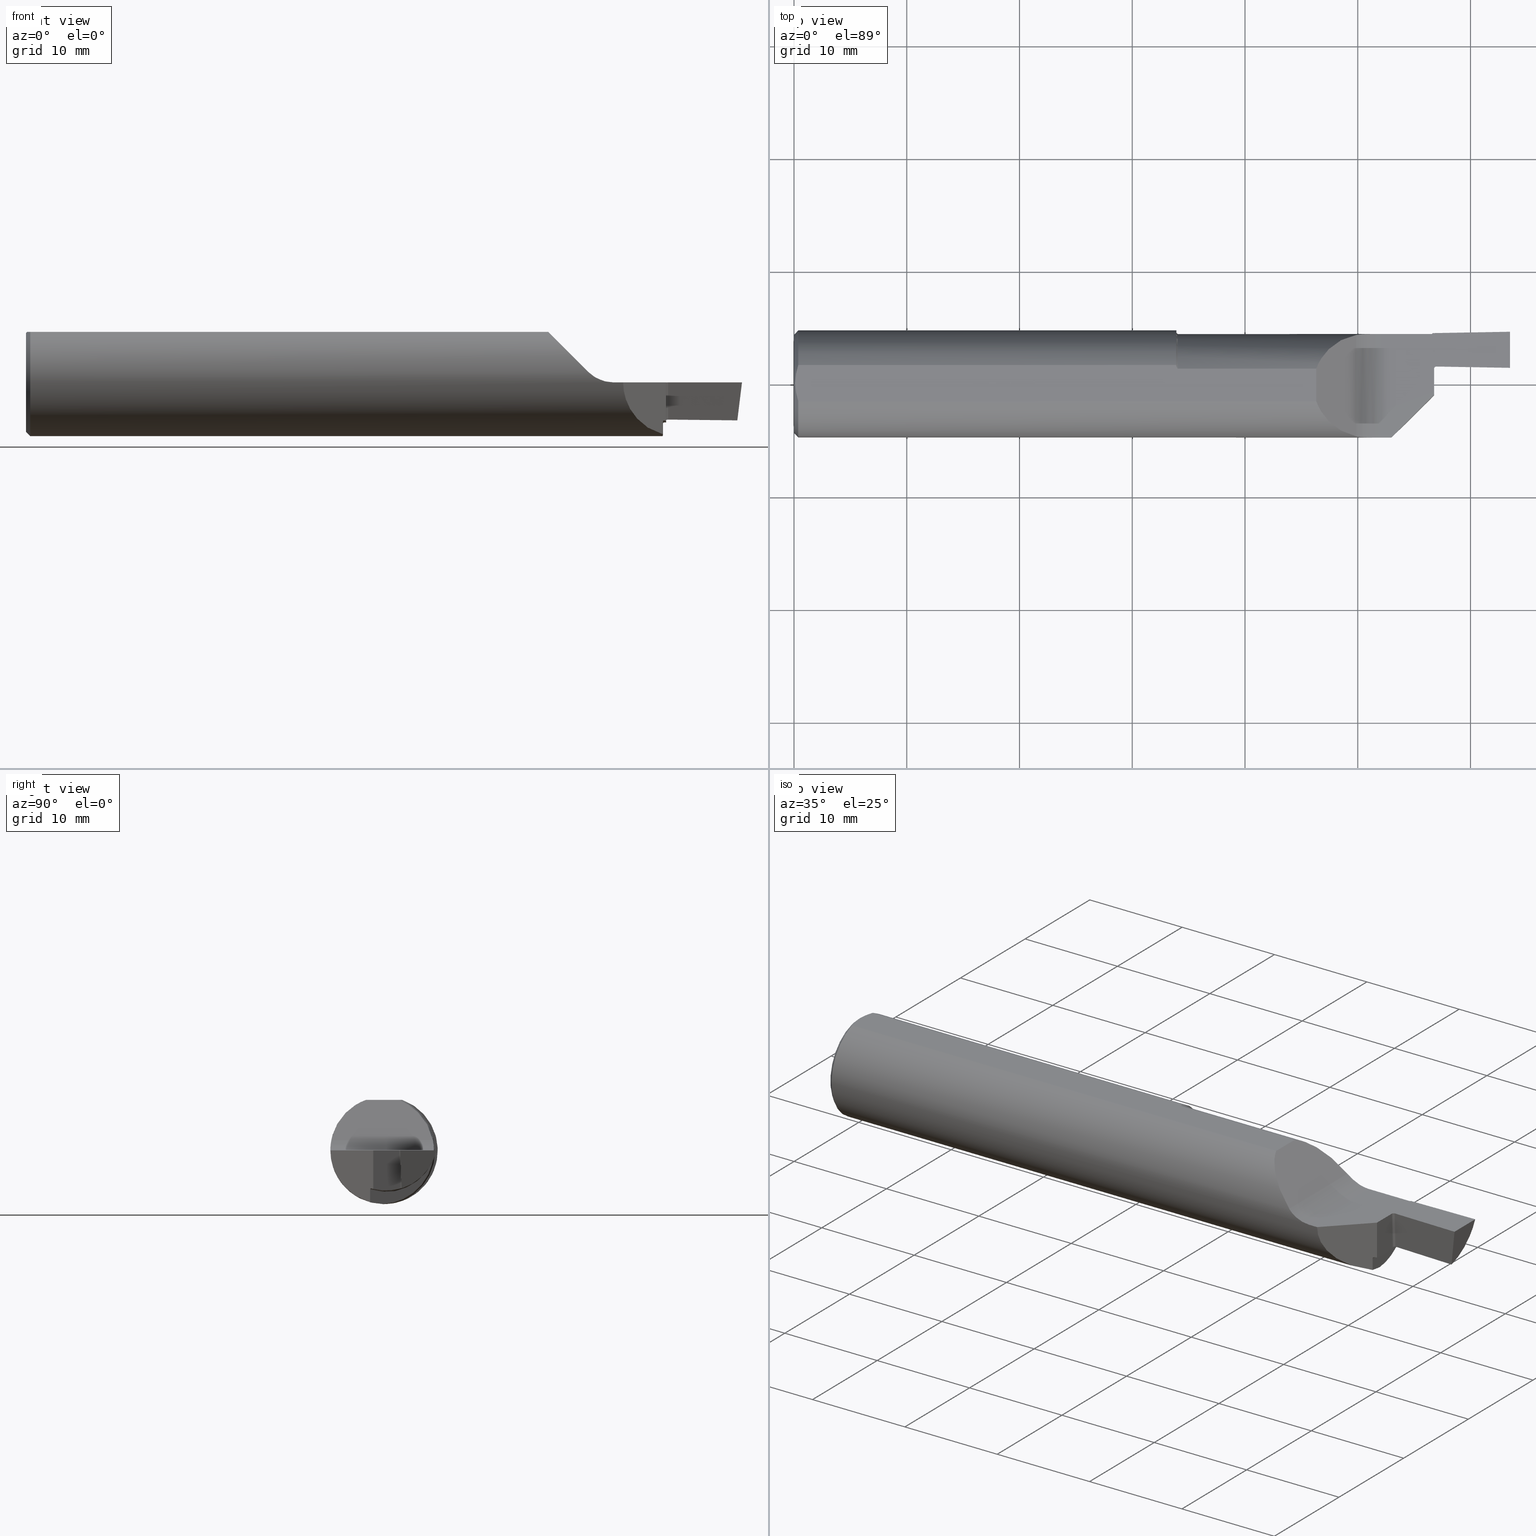
[diagram: canonical four-view strip — front | top / right | iso, engineering-drawing reading convention]
A machine part, canonical four-view strip (front | top / right | iso — engineering-drawing reading convention). The complete STEP part file that produces these views, byte-faithful:
ISO-10303-21;
HEADER;
FILE_DESCRIPTION (( 'STEP AP203' ),
    '1' );
FILE_NAME ('220106-FG375-125.STEP',
    '2024-06-10T23:37:11',
    ( '' ),
    ( '' ),
    'SwSTEP 2.0',
    'SolidWorks 2022',
    '' );
FILE_SCHEMA (( 'CONFIG_CONTROL_DESIGN' ));
ENDSEC;

DATA;
#1 = CARTESIAN_POINT ( 'NONE',  ( 2.483730880528812524, 0.06126097065367541034, -0.1325013450514557489 ) ) ;
#2 = FACE_OUTER_BOUND ( 'NONE', #51, .T. ) ;
#3 = DIRECTION ( 'NONE',  ( -0.9925461516413219831, 0.000000000000000000, 0.1218693434051483226 ) ) ;
#4 = AXIS2_PLACEMENT_3D ( 'NONE', #630, #227, #433 ) ;
#5 = CC_DESIGN_APPROVAL ( #262, ( #264 ) ) ;
#6 = CARTESIAN_POINT ( 'NONE',  ( 0.01157250466904289656, -0.05309883057899358189, 0.1763500000000000068 ) ) ;
#7 = DIRECTION ( 'NONE',  ( -0.000000000000000000, -0.000000000000000000, 1.000000000000000000 ) ) ;
#8 = ADVANCED_FACE ( 'NONE', ( #498 ), #304, .T. ) ;
#9 = ORIENTED_EDGE ( 'NONE', *, *, #711, .T. ) ;
#10 = CARTESIAN_POINT ( 'NONE',  ( 2.227361557384152757, 0.1745071238742555708, -0.01267693353281764378 ) ) ;
#11 = EDGE_LOOP ( 'NONE', ( #830, #161, #187 ) ) ;
#12 =( BOUNDED_CURVE ( )  B_SPLINE_CURVE ( 3, ( #585, #324, #521, #732 ),
 .UNSPECIFIED., .F., .F. ) 
 B_SPLINE_CURVE_WITH_KNOTS ( ( 4, 4 ),
 ( 0.2058125682894697273, 1.524309266450647016 ),
 .UNSPECIFIED. ) 
 CURVE ( )  GEOMETRIC_REPRESENTATION_ITEM ( )  RATIONAL_B_SPLINE_CURVE ( ( 1.000000000000000000, 0.8603019054232806662, 0.8603019054232806662, 1.000000000000000000 ) ) 
 REPRESENTATION_ITEM ( '' )  );
#13 = CARTESIAN_POINT ( 'NONE',  ( 2.241046502187421741, 0.06086928847748572513, -5.914667041412631776E-17 ) ) ;
#14 = EDGE_CURVE ( 'NONE', #538, #716, #367, .T. ) ;
#15 = VERTEX_POINT ( 'NONE', #43 ) ;
#16 = PERSON_AND_ORGANIZATION_ROLE ( 'design_owner' ) ;
#17 = CARTESIAN_POINT ( 'NONE',  ( 1.988965638552542048, 0.1736665399885003735, 0.01662166336216465423 ) ) ;
#18 = TOROIDAL_SURFACE ( 'NONE', #727, 0.1799999999999999656, 0.005000000000000000104 ) ;
#19 = CIRCLE ( 'NONE', #46, 0.1749999999999999334 ) ;
#20 = CARTESIAN_POINT ( 'NONE',  ( 2.235245210240516478, -0.1797550160436830191, -0.4023458071651450085 ) ) ;
#21 = EDGE_LOOP ( 'NONE', ( #74, #577, #563, #86 ) ) ;
#22 = DATE_AND_TIME ( #203, #317 ) ;
#23 = CC_DESIGN_PERSON_AND_ORGANIZATION_ASSIGNMENT ( #61, #584, ( #841 ) ) ;
#24 = APPLICATION_CONTEXT ( 'configuration controlled 3d designs of mechanical parts and assemblies' ) ;
#25 = CARTESIAN_POINT ( 'NONE',  ( 2.234999999999999876, -0.03734999999999999432, -0.1344876965665182389 ) ) ;
#26 = ORIENTED_EDGE ( 'NONE', *, *, #198, .T. ) ;
#27 = LINE ( 'NONE', #706, #678 ) ;
#28 = ORIENTED_EDGE ( 'NONE', *, *, #167, .T. ) ;
#29 = DIRECTION ( 'NONE',  ( -0.0006090802009083879243, -0.03489418134011375294, 0.9993908270190957621 ) ) ;
#30 = TOROIDAL_SURFACE ( 'NONE', #213, 0.1925000000000001987, 0.005000000000000066024 ) ;
#31 = EDGE_CURVE ( 'NONE', #217, #280, #839, .T. ) ;
#32 = CARTESIAN_POINT ( 'NONE',  ( 0.003999999999999476197, 2.550090563692220756E-17, 0.1763499999999999790 ) ) ;
#33 = EDGE_CURVE ( 'NONE', #192, #116, #566, .T. ) ;
#34 = VERTEX_POINT ( 'NONE', #115 ) ;
#35 = LINE ( 'NONE', #567, #857 ) ;
#36 = LINE ( 'NONE', #375, #550 ) ;
#37 = VERTEX_POINT ( 'NONE', #488 ) ;
#38 = LINE ( 'NONE', #689, #469 ) ;
#39 = CARTESIAN_POINT ( 'NONE',  ( 1.823649999999999771, -0.06325108694718213631, 0.1763499999999999790 ) ) ;
#40 = CARTESIAN_POINT ( 'NONE',  ( 2.243218789677472014, 0.06536346140935352100, -0.1297623207532133671 ) ) ;
#41 = EDGE_CURVE ( 'NONE', #781, #538, #835, .T. ) ;
#42 = DIRECTION ( 'NONE',  ( 1.000000000000000000, 0.000000000000000000, 0.000000000000000000 ) ) ;
#43 = CARTESIAN_POINT ( 'NONE',  ( 1.963388347648318932, -0.1837378823544007778, 0.03661165235168151871 ) ) ;
#44 = AXIS2_PLACEMENT_3D ( 'NONE', #308, #102, #634 ) ;
#45 = LENGTH_MEASURE_WITH_UNIT ( LENGTH_MEASURE( 0.02539999999999999897 ), #638 );
#46 = AXIS2_PLACEMENT_3D ( 'NONE', #847, #243, #708 ) ;
#47 = CARTESIAN_POINT ( 'NONE',  ( 2.225000000000020961, 0.1737315719203324227, -0.01520668941494147941 ) ) ;
#48 = CARTESIAN_POINT ( 'NONE',  ( 1.339399018889529280, -0.003959314961772966192, -0.1873084986825458431 ) ) ;
#49 = CARTESIAN_POINT ( 'NONE',  ( 0.9958286716179119979, -0.01315076164021992781, 0.000000000000000000 ) ) ;
#50 = CARTESIAN_POINT ( 'NONE',  ( 1.340000000000000080, -0.01315076164021994516, 0.000000000000000000 ) ) ;
#51 = EDGE_LOOP ( 'NONE', ( #572, #513 ) ) ;
#52 = ORIENTED_EDGE ( 'NONE', *, *, #851, .F. ) ;
#53 = CARTESIAN_POINT ( 'NONE',  ( 2.235927306602036868, 0.06156457679679982337, -0.1310376966899569340 ) ) ;
#54 = FACE_OUTER_BOUND ( 'NONE', #790, .T. ) ;
#55 = ORIENTED_EDGE ( 'NONE', *, *, #751, .F. ) ;
#56 = AXIS2_PLACEMENT_3D ( 'NONE', #404, #118, #854 ) ;
#57 = COORDINATED_UNIVERSAL_TIME_OFFSET ( 8, 0, .BEHIND. ) ;
#58 = ORIENTED_EDGE ( 'NONE', *, *, #515, .F. ) ;
#59 = CARTESIAN_POINT ( 'NONE',  ( 2.235080655074935585, 0.05744965021307228692, -0.1323404404258581302 ) ) ;
#60 = CARTESIAN_POINT ( 'NONE',  ( 2.224070280205729055, -0.04827971979427087001, -0.1810223498814073906 ) ) ;
#61 = PERSON_AND_ORGANIZATION ( #530, #406 ) ;
#62 = CARTESIAN_POINT ( 'NONE',  ( 1.963388347648318932, -0.1837378823544007778, 0.03661165235168151871 ) ) ;
#63 = PLANE ( 'NONE',  #111 ) ;
#64 = CARTESIAN_POINT ( 'NONE',  ( 2.224476490270001605, 0.1737269911545019085, -0.01526298465347420211 ) ) ;
#65 = CARTESIAN_POINT ( 'NONE',  ( 0.004994273251992769995, -0.02144446570098899885, 0.1763499999999999790 ) ) ;
#66 = EDGE_CURVE ( 'NONE', #15, #699, #152, .T. ) ;
#67 = PLANE ( 'NONE',  #458 ) ;
#68 = APPROVAL_STATUS ( 'not_yet_approved' ) ;
#69 = VECTOR ( 'NONE', #388, 39.37007874015748143 ) ;
#70 = ORIENTED_EDGE ( 'NONE', *, *, #499, .F. ) ;
#71 = CARTESIAN_POINT ( 'NONE',  ( 2.227932842058886642, -0.04441715794111287391, -0.1325528486153344787 ) ) ;
#72 = APPROVAL ( #347, 'UNSPECIFIED' ) ;
#73 = CARTESIAN_POINT ( 'NONE',  ( 2.221522222016079962, 0.1730273118114304398, -0.02231477987633340154 ) ) ;
#74 = ORIENTED_EDGE ( 'NONE', *, *, #89, .T. ) ;
#75 = DIRECTION ( 'NONE',  ( 1.000000000000000000, 0.000000000000000000, 0.000000000000000000 ) ) ;
#76 = DIRECTION ( 'NONE',  ( -0.9999998142845093474, -6.898818657590259293E-17, -0.0006094513490878019626 ) ) ;
#77 = ORIENTED_EDGE ( 'NONE', *, *, #843, .F. ) ;
#78 = LINE ( 'NONE', #670, #344 ) ;
#79 = CARTESIAN_POINT ( 'NONE',  ( 1.338826947156392722, 0.05089100678216058188, 0.1763500000000000068 ) ) ;
#80 = ORIENTED_EDGE ( 'NONE', *, *, #91, .T. ) ;
#81 = PERSON_AND_ORGANIZATION ( #530, #406 ) ;
#82 = CARTESIAN_POINT ( 'NONE',  ( 0.000000000000000000, 0.000000000000000000, -0.1723500000000004195 ) ) ;
#83 = VECTOR ( 'NONE', #575, 39.37007874015748143 ) ;
#84 = CC_DESIGN_APPROVAL ( #72, ( #382 ) ) ;
#85 = DIRECTION ( 'NONE',  ( 0.000000000000000000, 0.000000000000000000, -1.000000000000000000 ) ) ;
#86 = ORIENTED_EDGE ( 'NONE', *, *, #66, .F. ) ;
#87 = DIRECTION ( 'NONE',  ( -1.000000000000000000, -0.000000000000000000, -0.000000000000000000 ) ) ;
#88 = ORIENTED_EDGE ( 'NONE', *, *, #846, .T. ) ;
#89 = EDGE_CURVE ( 'NONE', #15, #275, #36, .T. ) ;
#90 = CYLINDRICAL_SURFACE ( 'NONE', #290, 0.007999999999999972411 ) ;
#91 = EDGE_CURVE ( 'NONE', #189, #616, #493, .T. ) ;
#92 = CARTESIAN_POINT ( 'NONE',  ( 2.225195724381930251, 0.1737370689674125335, -0.01518637176743948582 ) ) ;
#93 = CARTESIAN_POINT ( 'NONE',  ( 2.235001483111417553, 0.05298369335622980791, -0.0002790132549053967511 ) ) ;
#94 = EDGE_LOOP ( 'NONE', ( #483, #600, #334, #594, #178, #759 ) ) ;
#95 = CARTESIAN_POINT ( 'NONE',  ( 0.000000000000000000, 0.000000000000000000, 0.000000000000000000 ) ) ;
#96 = CONICAL_SURFACE ( 'NONE', #579, 0.1723500000000004195, 0.7853981633974492782 ) ;
#97 = CARTESIAN_POINT ( 'NONE',  ( 2.243379501196029580, 0.07457061814113474796, -0.3934609555193291364 ) ) ;
#98 =( BOUNDED_CURVE ( )  B_SPLINE_CURVE ( 3, ( #532, #210, #465, #677 ),
 .UNSPECIFIED., .F., .F. ) 
 B_SPLINE_CURVE_WITH_KNOTS ( ( 4, 4 ),
 ( 4.908913714375442439, 5.936585895212762587 ),
 .UNSPECIFIED. ) 
 CURVE ( )  GEOMETRIC_REPRESENTATION_ITEM ( )  RATIONAL_B_SPLINE_CURVE ( ( 1.000000000000000000, 0.9139102658081098562, 0.9139102658081098562, 1.000000000000000000 ) ) 
 REPRESENTATION_ITEM ( '' )  );
#99 = FACE_OUTER_BOUND ( 'NONE', #648, .T. ) ;
#100 = ORIENTED_EDGE ( 'NONE', *, *, #353, .F. ) ;
#101 = CARTESIAN_POINT ( 'NONE',  ( 1.340000000000000080, -0.01315076164021992781, 0.000000000000000000 ) ) ;
#102 = DIRECTION ( 'NONE',  ( -0.9998476951563914916, -0.01745240643726934937, -0.000000000000000000 ) ) ;
#103 = EDGE_CURVE ( 'NONE', #221, #280, #365, .T. ) ;
#104 = B_SPLINE_CURVE_WITH_KNOTS ( 'NONE', 3,
 ( #529, #109, #806, #730 ),
 .UNSPECIFIED., .F., .F.,
 ( 4, 4 ),
 ( 0.000000000000000000, 2.992142266556081871E-05 ),
 .UNSPECIFIED. ) ;
#105 = DIRECTION ( 'NONE',  ( 0.7071067811865467956, 8.659560562354943952E-17, 0.7071067811865483499 ) ) ;
#106 = EDGE_LOOP ( 'NONE', ( #163, #313, #811, #420, #704 ) ) ;
#107 = DIRECTION ( 'NONE',  ( -0.000000000000000000, -0.000000000000000000, 1.000000000000000000 ) ) ;
#108 = PRODUCT_RELATED_PRODUCT_CATEGORY ( 'detail', '', ( #490 ) ) ;
#109 = CARTESIAN_POINT ( 'NONE',  ( 2.234999999999999876, 0.05321789171388072170, -0.1335772048335258366 ) ) ;
#110 = CARTESIAN_POINT ( 'NONE',  ( 1.340000000000000080, -0.004437576883793904747, -0.1872974383471392446 ) ) ;
#111 = AXIS2_PLACEMENT_3D ( 'NONE', #325, #3, #261 ) ;
#112 = CARTESIAN_POINT ( 'NONE',  ( 2.235015201108374150, 0.05340379319913677453, -0.02494227894343313198 ) ) ;
#113 = ORIENTED_EDGE ( 'NONE', *, *, #617, .F. ) ;
#114 = CARTESIAN_POINT ( 'NONE',  ( 1.975584630924563934, -0.1856528012981897013, 0.02557015768846747708 ) ) ;
#115 = CARTESIAN_POINT ( 'NONE',  ( 0.01499999999999943046, 0.06325108694718213631, 0.1763499999999999790 ) ) ;
#116 = VERTEX_POINT ( 'NONE', #330 ) ;
#117 = CARTESIAN_POINT ( 'NONE',  ( 2.035390929681094807, -0.1873549854116181856, 0.0008110107679984991354 ) ) ;
#118 = DIRECTION ( 'NONE',  ( -0.9998476951563914916, -0.01745240643726934937, 0.000000000000000000 ) ) ;
#119 = CARTESIAN_POINT ( 'NONE',  ( 2.235081078821217204, 0.05513437243185975722, -0.1330357316970970372 ) ) ;
#120 = EDGE_LOOP ( 'NONE', ( #359, #735 ) ) ;
#121 = PERSON_AND_ORGANIZATION ( #530, #406 ) ;
#122 = DIRECTION ( 'NONE',  ( -0.000000000000000000, -0.000000000000000000, 1.000000000000000000 ) ) ;
#123 = CIRCLE ( 'NONE', #725, 0.1873499999999999888 ) ;
#124 = AXIS2_PLACEMENT_3D ( 'NONE', #215, #478, #605 ) ;
#125 = PERSON_AND_ORGANIZATION_ROLE ( 'design_supplier' ) ;
#126 =( BOUNDED_CURVE ( )  B_SPLINE_CURVE ( 3, ( #451, #849, #112, #301 ),
 .UNSPECIFIED., .F., .F. ) 
 B_SPLINE_CURVE_WITH_KNOTS ( ( 4, 4 ),
 ( 6.140516356368678430, 6.247658810434296051 ),
 .UNSPECIFIED. ) 
 CURVE ( )  GEOMETRIC_REPRESENTATION_ITEM ( )  RATIONAL_B_SPLINE_CURVE ( ( 1.000000000000000000, 0.9990436033059136856, 0.9990436033059136856, 1.000000000000000000 ) ) 
 REPRESENTATION_ITEM ( '' )  );
#127 = AXIS2_PLACEMENT_3D ( 'NONE', #541, #228, #691 ) ;
#128 = CARTESIAN_POINT ( 'NONE',  ( 0.005015444644058507026, 0.02160243875479323644, 0.1763499999999999790 ) ) ;
#129 = DIRECTION ( 'NONE',  ( -0.9998476951563914916, -0.01745240643726934937, 0.000000000000000000 ) ) ;
#130 = ADVANCED_FACE ( 'NONE', ( #718 ), #207, .F. ) ;
#131 = CARTESIAN_POINT ( 'NONE',  ( 2.224075113363942258, 0.1736934872265989971, -0.01567319864418825412 ) ) ;
#132 = EDGE_CURVE ( 'NONE', #338, #744, #786, .T. ) ;
#133 = ORIENTED_EDGE ( 'NONE', *, *, #723, .F. ) ;
#134 = CARTESIAN_POINT ( 'NONE',  ( 2.235005047996914129, 0.05311812361421081041, -0.008282853067734111466 ) ) ;
#135 = CARTESIAN_POINT ( 'NONE',  ( 2.235080655074935585, 0.05744965021307228692, -0.1323404404258581302 ) ) ;
#136 = COORDINATED_UNIVERSAL_TIME_OFFSET ( 8, 0, .BEHIND. ) ;
#137 = ORIENTED_EDGE ( 'NONE', *, *, #590, .T. ) ;
#138 = CARTESIAN_POINT ( 'NONE',  ( 0.003999999999999476197, 2.550090563692220756E-17, 0.1763499999999999790 ) ) ;
#139 = DIRECTION ( 'NONE',  ( 0.000000000000000000, 0.000000000000000000, -1.000000000000000000 ) ) ;
#140 = DIRECTION ( 'NONE',  ( 0.000000000000000000, 0.000000000000000000, -1.000000000000000000 ) ) ;
#141 = VECTOR ( 'NONE', #105, 39.37007874015748143 ) ;
#142 = ORIENTED_EDGE ( 'NONE', *, *, #641, .F. ) ;
#143 = CARTESIAN_POINT ( 'NONE',  ( 2.224236754541994987, -0.04811324545800543806, -0.1350949406068810699 ) ) ;
#144 = CARTESIAN_POINT ( 'NONE',  ( 1.337621628564846787, 0.05225604298120335722, 0.1763500000000000068 ) ) ;
#145 = ORIENTED_EDGE ( 'NONE', *, *, #103, .T. ) ;
#146 = CARTESIAN_POINT ( 'NONE',  ( 2.234999999999999876, 0.05283397142197883423, -6.829619984160658046E-17 ) ) ;
#147 = FACE_OUTER_BOUND ( 'NONE', #780, .T. ) ;
#148 = ORIENTED_EDGE ( 'NONE', *, *, #182, .T. ) ;
#149 = CARTESIAN_POINT ( 'NONE',  ( 2.224070280205729055, -0.04827971979427086308, -0.1358449287211288825 ) ) ;
#150 = CARTESIAN_POINT ( 'NONE',  ( 1.963388347648318710, 0.1707400671470789555, 0.03661165235168143545 ) ) ;
#151 = ORIENTED_EDGE ( 'NONE', *, *, #345, .F. ) ;
#152 =( BOUNDED_CURVE ( )  B_SPLINE_CURVE ( 3, ( #232, #631, #707, #39 ),
 .UNSPECIFIED., .F., .T. ) 
 B_SPLINE_CURVE_WITH_KNOTS ( ( 4, 4 ),
 ( 4.909073120026993919, 5.938809479923476076 ),
 .UNSPECIFIED. ) 
 CURVE ( )  GEOMETRIC_REPRESENTATION_ITEM ( )  RATIONAL_B_SPLINE_CURVE ( ( 1.000000000000000000, 0.9135717604705588801, 0.9135717604705588801, 1.000000000000000000 ) ) 
 REPRESENTATION_ITEM ( '' )  );
#153 = CARTESIAN_POINT ( 'NONE',  ( 2.223820125680282977, -0.03394837662970513065, -0.1848446029496835508 ) ) ;
#154 = EDGE_CURVE ( 'NONE', #352, #838, #315, .T. ) ;
#155 = ORIENTED_EDGE ( 'NONE', *, *, #473, .T. ) ;
#156 = EDGE_CURVE ( 'NONE', #296, #852, #202, .T. ) ;
#157 = LINE ( 'NONE', #496, #827 ) ;
#158 = CARTESIAN_POINT ( 'NONE',  ( 1.340000000000000080, 0.05054325299224017576, 0.1763500000000000068 ) ) ;
#159 = ORIENTED_EDGE ( 'NONE', *, *, #754, .T. ) ;
#160 = DIRECTION ( 'NONE',  ( 0.000000000000000000, 0.000000000000000000, 1.000000000000000000 ) ) ;
#161 = ORIENTED_EDGE ( 'NONE', *, *, #33, .T. ) ;
#162 = DIRECTION ( 'NONE',  ( -1.000000000000000000, -0.000000000000000000, -0.000000000000000000 ) ) ;
#163 = ORIENTED_EDGE ( 'NONE', *, *, #783, .F. ) ;
#164 = CIRCLE ( 'NONE', #740, 0.1723500000000004195 ) ;
#165 = DIRECTION ( 'NONE',  ( -1.000000000000000000, -0.000000000000000000, -0.000000000000000000 ) ) ;
#166 = AXIS2_PLACEMENT_3D ( 'NONE', #824, #85, #340 ) ;
#167 = EDGE_CURVE ( 'NONE', #755, #116, #312, .T. ) ;
#168 = DIRECTION ( 'NONE',  ( 0.000000000000000000, 0.000000000000000000, -1.000000000000000000 ) ) ;
#169 = LINE ( 'NONE', #366, #141 ) ;
#170 = CARTESIAN_POINT ( 'NONE',  ( 2.006149758463117383, 0.06496942639061836777, 0.000000000000000000 ) ) ;
#171 = CARTESIAN_POINT ( 'NONE',  ( 2.234999999999999876, -0.03734999999999999432, -6.829619984160658046E-17 ) ) ;
#172 = CC_DESIGN_DATE_AND_TIME_ASSIGNMENT ( #218, #400, ( #382 ) ) ;
#173 = CARTESIAN_POINT ( 'NONE',  ( 2.225000000000000089, 0.1743492383597801954, 0.000000000000000000 ) ) ;
#174 = CARTESIAN_POINT ( 'NONE',  ( 0.01499999999999943046, 0.000000000000000000, 0.000000000000000000 ) ) ;
#175 = B_SPLINE_CURVE_WITH_KNOTS ( 'NONE', 3,
 ( #461, #713, #117, #853, #250, #398, #508, #114, #311, #62 ),
 .UNSPECIFIED., .F., .F.,
 ( 4, 2, 2, 2, 4 ),
 ( 0.000000000000000000, 0.0006206708188418187102, 0.001241341637683637420, 0.001862012456525456022, 0.002482683275367274841 ),
 .UNSPECIFIED. ) ;
#176 = CARTESIAN_POINT ( 'NONE',  ( 2.228380698551740036, 0.1754135390342347334, -0.009435681873652420823 ) ) ;
#177 = CARTESIAN_POINT ( 'NONE',  ( 2.224070280205729055, -0.04827971979427087001, -0.1810223498814073906 ) ) ;
#178 = ORIENTED_EDGE ( 'NONE', *, *, #758, .F. ) ;
#179 = VECTOR ( 'NONE', #7, 39.37007874015748143 ) ;
#180 =( NAMED_UNIT ( * ) SI_UNIT ( $, .STERADIAN. ) SOLID_ANGLE_UNIT ( ) );
#181 = VERTEX_POINT ( 'NONE', #135 ) ;
#182 = EDGE_CURVE ( 'NONE', #238, #254, #252, .T. ) ;
#183 = ORIENTED_EDGE ( 'NONE', *, *, #485, .T. ) ;
#184 = CARTESIAN_POINT ( 'NONE',  ( 0.01499999999999943046, 0.000000000000000000, -0.1873499999999998777 ) ) ;
#185 = ADVANCED_FACE ( 'NONE', ( #803 ), #67, .F. ) ;
#186 = DIRECTION ( 'NONE',  ( 0.000000000000000000, 1.000000000000000000, 0.000000000000000000 ) ) ;
#187 = ORIENTED_EDGE ( 'NONE', *, *, #258, .F. ) ;
#188 = DATE_TIME_ROLE ( 'classification_date' ) ;
#189 = VERTEX_POINT ( 'NONE', #466 ) ;
#190 = CARTESIAN_POINT ( 'NONE',  ( 2.234999999999999876, -0.03734999999999999432, -0.1344876965665182389 ) ) ;
#191 = CARTESIAN_POINT ( 'NONE',  ( 2.234999999999999876, 0.05283397142197883423, -0.1873499999999999888 ) ) ;
#192 = VERTEX_POINT ( 'NONE', #1 ) ;
#193 = APPROVAL_ROLE ( '' ) ;
#194 = ORIENTED_EDGE ( 'NONE', *, *, #561, .T. ) ;
#195 = CARTESIAN_POINT ( 'NONE',  ( 2.138778143966457712, -0.1335718560335421579, -0.1582744381402079736 ) ) ;
#196 = ADVANCED_FACE ( 'NONE', ( #653 ), #591, .F. ) ;
#197 = AXIS2_PLACEMENT_3D ( 'NONE', #273, #625, #819 ) ;
#198 = EDGE_CURVE ( 'NONE', #852, #744, #582, .T. ) ;
#199 = AXIS2_PLACEMENT_3D ( 'NONE', #416, #492, #619 ) ;
#200 = ORIENTED_EDGE ( 'NONE', *, *, #198, .F. ) ;
#201 = DIRECTION ( 'NONE',  ( -1.000000000000000000, -0.000000000000000000, -0.000000000000000000 ) ) ;
#202 = LINE ( 'NONE', #384, #239 ) ;
#203 = CALENDAR_DATE ( 2024, 10, 6 ) ;
#204 = CARTESIAN_POINT ( 'NONE',  ( 2.228058799335706830, 0.1750538620465196538, -0.01076163286876554749 ) ) ;
#205 = ORIENTED_EDGE ( 'NONE', *, *, #751, .T. ) ;
#206 = PLANE ( 'NONE',  #610 ) ;
#207 = PLANE ( 'NONE',  #756 ) ;
#208 = DIRECTION ( 'NONE',  ( 0.000000000000000000, 0.000000000000000000, 1.000000000000000000 ) ) ;
#209 = ORIENTED_EDGE ( 'NONE', *, *, #371, .F. ) ;
#210 = CARTESIAN_POINT ( 'NONE',  ( 1.897454588124415586, 0.1576130183548815344, 0.1025454118755840249 ) ) ;
#211 = B_SPLINE_CURVE_WITH_KNOTS ( 'NONE', 3,
 ( #479, #556, #279, #482, #216, #144, #606, #79, #542, #753 ),
 .UNSPECIFIED., .F., .F.,
 ( 4, 2, 2, 2, 4 ),
 ( 0.001068967629214199935, 0.001252800944429019675, 0.001344717602036429437, 0.001390675930840129656, 0.001436634259643829875 ),
 .UNSPECIFIED. ) ;
#212 = LINE ( 'NONE', #636, #495 ) ;
#213 = AXIS2_PLACEMENT_3D ( 'NONE', #810, #526, #208 ) ;
#214 = VERTEX_POINT ( 'NONE', #860 ) ;
#215 = CARTESIAN_POINT ( 'NONE',  ( 2.243379501196029580, 0.07457061814113474796, -0.3934609555193291364 ) ) ;
#216 = CARTESIAN_POINT ( 'NONE',  ( 1.336737058446424209, 0.05385394031618935540, 0.1763500000000000068 ) ) ;
#217 = VERTEX_POINT ( 'NONE', #399 ) ;
#218 = DATE_AND_TIME ( #281, #332 ) ;
#219 = LINE ( 'NONE', #82, #274 ) ;
#220 = CARTESIAN_POINT ( 'NONE',  ( 2.225195724381930251, 0.1737370689674125335, -0.01518637176743948582 ) ) ;
#221 = VERTEX_POINT ( 'NONE', #647 ) ;
#222 = PERSON_AND_ORGANIZATION ( #530, #406 ) ;
#223 = EDGE_CURVE ( 'NONE', #616, #34, #123, .T. ) ;
#224 = CARTESIAN_POINT ( 'NONE',  ( 2.235003195454503988, 0.05307954891108250528, -0.001601214643640926256 ) ) ;
#225 = ORIENTED_EDGE ( 'NONE', *, *, #307, .F. ) ;
#226 = CIRCLE ( 'NONE', #697, 0.1723500000000004195 ) ;
#227 = DIRECTION ( 'NONE',  ( 1.000000000000000000, 0.000000000000000000, 0.000000000000000000 ) ) ;
#228 = DIRECTION ( 'NONE',  ( 0.000000000000000000, 0.000000000000000000, -1.000000000000000000 ) ) ;
#229 = ADVANCED_FACE ( 'NONE', ( #54 ), #256, .F. ) ;
#230 = ORIENTED_EDGE ( 'NONE', *, *, #31, .F. ) ;
#231 = FACE_OUTER_BOUND ( 'NONE', #120, .T. ) ;
#232 = CARTESIAN_POINT ( 'NONE',  ( 1.963388347648318932, -0.1837378823544007778, 0.03661165235168151871 ) ) ;
#233 = CARTESIAN_POINT ( 'NONE',  ( 2.229695513750926228, 0.1776310560019196683, 7.485903779513596776E-15 ) ) ;
#234 = CARTESIAN_POINT ( 'NONE',  ( 2.235005047996914129, 0.05311812361421081041, -0.008282853067734111466 ) ) ;
#235 = ORIENTED_EDGE ( 'NONE', *, *, #524, .T. ) ;
#236 = CARTESIAN_POINT ( 'NONE',  ( 1.335003182178051029, 0.06477635905624776202, 0.1758029338316828838 ) ) ;
#237 = CARTESIAN_POINT ( 'NONE',  ( 2.492063164698834932, 0.1690140370871690556, -0.06464033623446706345 ) ) ;
#238 = VERTEX_POINT ( 'NONE', #661 ) ;
#239 = VECTOR ( 'NONE', #122, 39.37007874015748143 ) ;
#240 = DIRECTION ( 'NONE',  ( 1.000000000000000000, 0.000000000000000000, 0.000000000000000000 ) ) ;
#241 = VECTOR ( 'NONE', #415, 39.37007874015748143 ) ;
#242 = ORIENTED_EDGE ( 'NONE', *, *, #525, .T. ) ;
#243 = DIRECTION ( 'NONE',  ( 0.9998476951563914916, 0.01745240643726934937, -0.000000000000000000 ) ) ;
#244 = DIRECTION ( 'NONE',  ( -1.000000000000000000, -0.000000000000000000, -0.000000000000000000 ) ) ;
#245 = CARTESIAN_POINT ( 'NONE',  ( 2.486076710489366182, 0.1244578844809823559, -0.1133960931915878323 ) ) ;
#246 = CARTESIAN_POINT ( 'NONE',  ( 1.338454682457659528, -0.0009828732464432995714, -0.1873489900603167724 ) ) ;
#247 =( NAMED_UNIT ( * ) PLANE_ANGLE_UNIT ( ) SI_UNIT ( $, .RADIAN. ) );
#248 = EDGE_CURVE ( 'NONE', #560, #385, #845, .T. ) ;
#249 = ADVANCED_FACE ( 'NONE', ( #722 ), #63, .F. ) ;
#250 = CARTESIAN_POINT ( 'NONE',  ( 2.011462618758882659, -0.1872671557635287864, 0.006396047567269131165 ) ) ;
#251 = CARTESIAN_POINT ( 'NONE',  ( 0.01499999999999943046, 0.000000000000000000, 0.000000000000000000 ) ) ;
#252 = CIRCLE ( 'NONE', #56, 0.1799999999999999656 ) ;
#253 = CARTESIAN_POINT ( 'NONE',  ( 2.051776695296636976, -0.1873499999999999888, 0.000000000000000000 ) ) ;
#254 = VERTEX_POINT ( 'NONE', #523 ) ;
#255 = ORIENTED_EDGE ( 'NONE', *, *, #223, .F. ) ;
#256 = PLANE ( 'NONE',  #372 ) ;
#257 = ORIENTED_EDGE ( 'NONE', *, *, #552, .F. ) ;
#258 = EDGE_CURVE ( 'NONE', #716, #116, #800, .T. ) ;
#259 = CARTESIAN_POINT ( 'NONE',  ( 2.234999999999999876, -0.2873499999999999943, 0.000000000000000000 ) ) ;
#260 = DIRECTION ( 'NONE',  ( 1.000000000000000000, 0.000000000000000000, 0.000000000000000000 ) ) ;
#261 = DIRECTION ( 'NONE',  ( 0.1218693434051483088, 0.000000000000000000, 0.9925461516413218721 ) ) ;
#262 = APPROVAL ( #421, 'UNSPECIFIED' ) ;
#263 = VECTOR ( 'NONE', #502, 39.37007874015748143 ) ;
#264 = SECURITY_CLASSIFICATION ( '', '', #588 ) ;
#265 = CARTESIAN_POINT ( 'NONE',  ( 2.222298499799074012, 0.1733515975356395844, -0.01934201723226082817 ) ) ;
#266 = LINE ( 'NONE', #457, #389 ) ;
#267 = DIRECTION ( 'NONE',  ( -0.000000000000000000, 0.000000000000000000, 1.000000000000000000 ) ) ;
#268 = VERTEX_POINT ( 'NONE', #158 ) ;
#269 = CARTESIAN_POINT ( 'NONE',  ( 1.963388347648318710, 0.1707400671470789555, 0.03661165235168143545 ) ) ;
#270 = VERTEX_POINT ( 'NONE', #537 ) ;
#271 = CARTESIAN_POINT ( 'NONE',  ( 2.228985250716561950, -0.04336474928343794083, -0.1328576432028670817 ) ) ;
#272 = B_SPLINE_CURVE_WITH_KNOTS ( 'NONE', 3,
 ( #220, #614, #752, #288 ),
 .UNSPECIFIED., .F., .F.,
 ( 4, 4 ),
 ( 0.0001318778386770345294, 0.0001368113093930684856 ),
 .UNSPECIFIED. ) ;
#273 = CARTESIAN_POINT ( 'NONE',  ( 0.000000000000000000, 0.000000000000000000, 0.000000000000000000 ) ) ;
#274 = VECTOR ( 'NONE', #348, 39.37007874015748143 ) ;
#275 = VERTEX_POINT ( 'NONE', #150 ) ;
#276 = APPROVAL_DATE_TIME ( #22, #72 ) ;
#277 = LOCAL_TIME ( 16, 37, 11.00000000000000000, #789 ) ;
#278 = CARTESIAN_POINT ( 'NONE',  ( 2.224879016162464307, -0.04747098383753514672, -0.1338732983212888028 ) ) ;
#279 = CARTESIAN_POINT ( 'NONE',  ( 1.335371528663762408, 0.05848268389675807810, 0.1763499999999999790 ) ) ;
#280 = VERTEX_POINT ( 'NONE', #611 ) ;
#281 = CALENDAR_DATE ( 2024, 10, 6 ) ;
#282 = CALENDAR_DATE ( 2024, 10, 6 ) ;
#283 = ADVANCED_FACE ( 'NONE', ( #147 ), #343, .F. ) ;
#284 = ADVANCED_FACE ( 'NONE', ( #417 ), #829, .F. ) ;
#285 = ORIENTED_EDGE ( 'NONE', *, *, #754, .F. ) ;
#286 = APPROVAL_ROLE ( '' ) ;
#287 = CARTESIAN_POINT ( 'NONE',  ( 2.483730880528812524, 0.06126097065367541034, -0.1325013450514557489 ) ) ;
#288 = CARTESIAN_POINT ( 'NONE',  ( 2.225000000000020961, 0.1737315719203324227, -0.01520668941494147941 ) ) ;
#289 = ORIENTED_EDGE ( 'NONE', *, *, #405, .T. ) ;
#290 = AXIS2_PLACEMENT_3D ( 'NONE', #622, #29, #291 ) ;
#291 = DIRECTION ( 'NONE',  ( 0.000000000000000000, -0.9993910123954978797, -0.03489418781261234559 ) ) ;
#292 = CARTESIAN_POINT ( 'NONE',  ( 2.224070280205729055, -0.04827971979427087001, -0.1810223498814073906 ) ) ;
#293 = ORIENTED_EDGE ( 'NONE', *, *, #739, .F. ) ;
#294 = ADVANCED_BREP_SHAPE_REPRESENTATION ( '220106-FG375-125', ( #306, #305 ), #698 ) ;
#295 = CYLINDRICAL_SURFACE ( 'NONE', #360, 0.008000000000000024453 ) ;
#296 = VERTEX_POINT ( 'NONE', #25 ) ;
#297 = CARTESIAN_POINT ( 'NONE',  ( 2.235081279710833257, 0.05397145504029367963, -0.1333653553471046693 ) ) ;
#298 = ORIENTED_EDGE ( 'NONE', *, *, #783, .T. ) ;
#299 = CARTESIAN_POINT ( 'NONE',  ( 0.000000000000000000, 2.202527268266516892E-17, 0.1723500000000004195 ) ) ;
#300 = CARTESIAN_POINT ( 'NONE',  ( 1.336913895729895607, 0.01061167438636866772, -0.1870750754728970622 ) ) ;
#301 = CARTESIAN_POINT ( 'NONE',  ( 2.235005047996914129, 0.05311812361421081041, -0.008282853067734111466 ) ) ;
#302 = CIRCLE ( 'NONE', #4, 0.1873499999999999888 ) ;
#303 = CARTESIAN_POINT ( 'NONE',  ( 2.225000000000020961, 0.1737315719203324227, -0.01520668941494147941 ) ) ;
#304 = CYLINDRICAL_SURFACE ( 'NONE', #44, 0.1749999999999999611 ) ;
#305 = AXIS2_PLACEMENT_3D ( 'NONE', #643, #576, #855 ) ;
#306 = MANIFOLD_SOLID_BREP ( 'Cut-Revolve1', #536 ) ;
#307 = EDGE_CURVE ( 'NONE', #270, #422, #164, .T. ) ;
#308 = CARTESIAN_POINT ( 'NONE',  ( 2.783037081014823944, 0.01579926817248462206, 0.03500000000000000333 ) ) ;
#309 = EDGE_CURVE ( 'NONE', #538, #214, #602, .T. ) ;
#310 = DIRECTION ( 'NONE',  ( -1.000000000000000000, -0.000000000000000000, -0.000000000000000000 ) ) ;
#311 = CARTESIAN_POINT ( 'NONE',  ( 1.969176586392017869, -0.1848912481268661367, 0.03082341360798270674 ) ) ;
#312 = LINE ( 'NONE', #587, #69 ) ;
#313 = ORIENTED_EDGE ( 'NONE', *, *, #846, .F. ) ;
#314 = CARTESIAN_POINT ( 'NONE',  ( 2.238905642144437991, 0.06451725378298271696, -0.1300433241739527845 ) ) ;
#315 = LINE ( 'NONE', #462, #481 ) ;
#316 = ORIENTED_EDGE ( 'NONE', *, *, #167, .F. ) ;
#317 = LOCAL_TIME ( 16, 37, 11.00000000000000000, #816 ) ;
#318 = EDGE_CURVE ( 'NONE', #621, #214, #407, .T. ) ;
#319 = APPROVAL_DATE_TIME ( #455, #323 ) ;
#320 = ORIENTED_EDGE ( 'NONE', *, *, #91, .F. ) ;
#321 = CARTESIAN_POINT ( 'NONE',  ( 0.008794551420594657470, 0.04267918597792697000, 0.1763499999999999790 ) ) ;
#322 = DIRECTION ( 'NONE',  ( -0.000000000000000000, -1.000000000000000000, -0.000000000000000000 ) ) ;
#323 = APPROVAL ( #68, 'UNSPECIFIED' ) ;
#324 = CARTESIAN_POINT ( 'NONE',  ( 2.220570820707118198, 0.1522041806097133576, -0.1254379557757593355 ) ) ;
#325 = CARTESIAN_POINT ( 'NONE',  ( 2.501506277050174365, 0.1873500000000000165, 0.01226764211312855388 ) ) ;
#326 = CARTESIAN_POINT ( 'NONE',  ( 2.225905804814102940, 0.1737707573142487916, -0.01511524972317379242 ) ) ;
#327 = ORIENTED_EDGE ( 'NONE', *, *, #309, .T. ) ;
#328 = CARTESIAN_POINT ( 'NONE',  ( 0.008771136374093822449, -0.04258802525788809440, 0.1763499999999999790 ) ) ;
#329 =( BOUNDED_CURVE ( )  B_SPLINE_CURVE ( 3, ( #717, #383, #646, #387 ),
 .UNSPECIFIED., .F., .F. ) 
 B_SPLINE_CURVE_WITH_KNOTS ( ( 4, 4 ),
 ( 1.319139245857699594, 1.840296107030880757 ),
 .UNSPECIFIED. ) 
 CURVE ( )  GEOMETRIC_REPRESENTATION_ITEM ( )  RATIONAL_B_SPLINE_CURVE ( ( 1.000000000000000000, 0.9774940754800396370, 0.9774940754800396370, 1.000000000000000000 ) ) 
 REPRESENTATION_ITEM ( '' )  );
#330 = CARTESIAN_POINT ( 'NONE',  ( 2.500000000000000000, 0.1823492383597802857, -5.228927800373003955E-16 ) ) ;
#331 = APPROVAL_ROLE ( '' ) ;
#332 = LOCAL_TIME ( 16, 37, 11.00000000000000000, #136 ) ;
#333 = CARTESIAN_POINT ( 'NONE',  ( 2.228985250716561950, -0.04336474928343794083, -0.1328576432028670817 ) ) ;
#334 = ORIENTED_EDGE ( 'NONE', *, *, #318, .T. ) ;
#335 = FACE_OUTER_BOUND ( 'NONE', #486, .T. ) ;
#336 = ADVANCED_FACE ( 'NONE', ( #743 ), #769, .T. ) ;
#337 = B_SPLINE_CURVE_WITH_KNOTS ( 'NONE', 3,
 ( #59, #379, #53, #314, #859, #580 ),
 .UNSPECIFIED., .F., .F.,
 ( 4, 2, 4 ),
 ( 0.000000000000000000, 0.0001636813906355547130, 0.0003273627812711094260 ),
 .UNSPECIFIED. ) ;
#338 = VERTEX_POINT ( 'NONE', #475 ) ;
#339 = CARTESIAN_POINT ( 'NONE',  ( 2.011402846495882635, 0.1742657643842316917, 0.006416841385945341175 ) ) ;
#340 = DIRECTION ( 'NONE',  ( -1.000000000000000000, 0.000000000000000000, -0.000000000000000000 ) ) ;
#341 = VERTEX_POINT ( 'NONE', #32 ) ;
#342 = PLANE ( 'NONE',  #124 ) ;
#343 = PLANE ( 'NONE',  #166 ) ;
#344 = VECTOR ( 'NONE', #75, 39.37007874015748143 ) ;
#345 = EDGE_CURVE ( 'NONE', #37, #560, #393, .T. ) ;
#346 = EDGE_LOOP ( 'NONE', ( #815, #448, #626, #200 ) ) ;
#347 = APPROVAL_STATUS ( 'not_yet_approved' ) ;
#348 = DIRECTION ( 'NONE',  ( 0.7071067811865467956, 0.000000000000000000, -0.7071067811865483499 ) ) ;
#349 = EDGE_CURVE ( 'NONE', #570, #268, #211, .T. ) ;
#350 = PLANE ( 'NONE',  #199 ) ;
#351 = DIRECTION ( 'NONE',  ( -0.0006094513490878018542, 0.000000000000000000, 0.9999998142845092364 ) ) ;
#352 = VERTEX_POINT ( 'NONE', #831 ) ;
#353 = EDGE_CURVE ( 'NONE', #37, #221, #35, .T. ) ;
#354 = DIRECTION ( 'NONE',  ( 1.000000000000000000, 0.000000000000000000, 0.000000000000000000 ) ) ;
#355 = ORIENTED_EDGE ( 'NONE', *, *, #33, .F. ) ;
#356 = DIRECTION ( 'NONE',  ( 0.000000000000000000, 0.000000000000000000, -1.000000000000000000 ) ) ;
#357 = CYLINDRICAL_SURFACE ( 'NONE', #710, 0.1873499999999999888 ) ;
#358 = CARTESIAN_POINT ( 'NONE',  ( 0.000000000000000000, 0.000000000000000000, 0.000000000000000000 ) ) ;
#359 = ORIENTED_EDGE ( 'NONE', *, *, #307, .T. ) ;
#360 = AXIS2_PLACEMENT_3D ( 'NONE', #837, #431, #240 ) ;
#361 = CARTESIAN_POINT ( 'NONE',  ( 2.084999999999999964, -0.1873499999999999888, -6.829619984160658046E-17 ) ) ;
#362 = DIRECTION ( 'NONE',  ( 0.9998476951563912696, -0.01745240643727497681, 0.000000000000000000 ) ) ;
#363 = DIRECTION ( 'NONE',  ( 0.000000000000000000, 0.000000000000000000, 1.000000000000000000 ) ) ;
#364 = EDGE_LOOP ( 'NONE', ( #517, #225, #205, #320, #612 ) ) ;
#365 = B_SPLINE_CURVE_WITH_KNOTS ( 'NONE', 3,
 ( #110, #429, #48, #380, #432, #848, #246, #555, #504, #642, #300, #832, #695, #528, #795, #728 ),
 .UNSPECIFIED., .F., .F.,
 ( 4, 2, 2, 2, 2, 2, 2, 4 ),
 ( 1.972663511944079485E-07, 3.038878334213652248E-05, 6.058030033307863711E-05, 0.0001209633343149629206, 0.0002417294022787314469, 0.0004832615382062712371, 0.0009663258100613504381, 0.001932454353771507647 ),
 .UNSPECIFIED. ) ;
#366 = CARTESIAN_POINT ( 'NONE',  ( 0.000000000000000000, 2.110678758330468070E-17, 0.1723500000000004195 ) ) ;
#367 = LINE ( 'NONE', #170, #812 ) ;
#368 = CARTESIAN_POINT ( 'NONE',  ( 1.992499999999999938, -0.2798499999999997656, 0.000000000000000000 ) ) ;
#369 = ORIENTED_EDGE ( 'NONE', *, *, #441, .F. ) ;
#370 = CARTESIAN_POINT ( 'NONE',  ( 2.235080870601803493, 0.05629381229456442703, -0.1326940811695836719 ) ) ;
#371 = EDGE_CURVE ( 'NONE', #254, #560, #703, .T. ) ;
#372 = AXIS2_PLACEMENT_3D ( 'NONE', #516, #129, #733 ) ;
#373 = CARTESIAN_POINT ( 'NONE',  ( 2.226384056768564434, 0.1739719148856696818, -0.01446936920559651306 ) ) ;
#374 = EDGE_CURVE ( 'NONE', #280, #217, #302, .T. ) ;
#375 = CARTESIAN_POINT ( 'NONE',  ( 1.963388347648318932, 0.2873499999999999943, 0.03661165235168144932 ) ) ;
#376 = DIRECTION ( 'NONE',  ( -1.000000000000000000, -1.365923996832108772E-14, 0.000000000000000000 ) ) ;
#377 = ORIENTED_EDGE ( 'NONE', *, *, #682, .T. ) ;
#378 = CARTESIAN_POINT ( 'NONE',  ( 2.220253349435743928, 0.1703920975656307568, -0.03831799622294082552 ) ) ;
#379 = CARTESIAN_POINT ( 'NONE',  ( 2.235080266572595509, 0.05953312935881082540, -0.1317029781114302800 ) ) ;
#380 = CARTESIAN_POINT ( 'NONE',  ( 1.339074979391454923, -0.003245713992497605265, -0.1873222229057585064 ) ) ;
#381 = ORIENTED_EDGE ( 'NONE', *, *, #549, .F. ) ;
#382 = PRODUCT_DEFINITION ( 'UNKNOWN', '', #841, #476 ) ;
#383 = CARTESIAN_POINT ( 'NONE',  ( 2.234999999999999876, -0.007564055248285224062, -0.1421447286674906718 ) ) ;
#384 = CARTESIAN_POINT ( 'NONE',  ( 2.234999999999999876, -0.03734999999999999432, -0.1873499999999999888 ) ) ;
#385 = VERTEX_POINT ( 'NONE', #361 ) ;
#386 = DATE_AND_TIME ( #390, #277 ) ;
#387 = CARTESIAN_POINT ( 'NONE',  ( 2.234999999999999876, 0.05283397142197883423, -0.1336832350208877196 ) ) ;
#388 = DIRECTION ( 'NONE',  ( 0.9998476951563914916, 0.01745240643726934937, 0.000000000000000000 ) ) ;
#389 = VECTOR ( 'NONE', #589, 39.37007874015748143 ) ;
#390 = CALENDAR_DATE ( 2024, 10, 6 ) ;
#391 = VERTEX_POINT ( 'NONE', #826 ) ;
#392 = CARTESIAN_POINT ( 'NONE',  ( 0.003999999999999440635, 0.01078773779713886743, 0.1763500000000000068 ) ) ;
#393 =( BOUNDED_CURVE ( )  B_SPLINE_CURVE ( 3, ( #814, #671, #153, #292 ),
 .UNSPECIFIED., .F., .F. ) 
 B_SPLINE_CURVE_WITH_KNOTS ( ( 4, 4 ),
 ( 1.594484567640994443, 1.831435300652088927 ),
 .UNSPECIFIED. ) 
 CURVE ( )  GEOMETRIC_REPRESENTATION_ITEM ( )  RATIONAL_B_SPLINE_CURVE ( ( 1.000000000000000000, 0.9953266660858999249, 0.9953266660858999249, 1.000000000000000000 ) ) 
 REPRESENTATION_ITEM ( '' )  );
#394 = CARTESIAN_POINT ( 'NONE',  ( 2.084999999999999964, -0.1873499999999999888, -0.08827352940062963005 ) ) ;
#395 = PRODUCT_DEFINITION_SHAPE ( 'NONE', 'NONE',  #382 ) ;
#396 = CARTESIAN_POINT ( 'NONE',  ( 2.220238758154331915, 0.1712280315178650869, -0.03431388006802354312 ) ) ;
#397 = ORIENTED_EDGE ( 'NONE', *, *, #688, .T. ) ;
#398 = CARTESIAN_POINT ( 'NONE',  ( 1.996326790910569082, -0.1869473204897925123, 0.01267266404239195815 ) ) ;
#399 = CARTESIAN_POINT ( 'NONE',  ( 1.335000000000000187, 0.06780158507429057124, 0.1746509878626906764 ) ) ;
#400 = DATE_TIME_ROLE ( 'creation_date' ) ;
#401 = EDGE_LOOP ( 'NONE', ( #664, #833, #52 ) ) ;
#402 = EDGE_CURVE ( 'NONE', #422, #270, #226, .T. ) ;
#403 = CARTESIAN_POINT ( 'NONE',  ( 1.975456747076115072, 0.1726394736848242961, 0.02567045653326192542 ) ) ;
#404 = CARTESIAN_POINT ( 'NONE',  ( 2.223122371727244584, 0.006025920567613790753, 0.03500000000000000333 ) ) ;
#405 = EDGE_CURVE ( 'NONE', #699, #391, #157, .T. ) ;
#406 = ORGANIZATION ( 'UNSPECIFIED', 'UNSPECIFIED', '' ) ;
#407 = B_SPLINE_CURVE_WITH_KNOTS ( 'NONE', 3,
 ( #234, #674, #545, #692, #224, #93 ),
 .UNSPECIFIED., .F., .F.,
 ( 4, 2, 4 ),
 ( 0.02300346262580112502, 0.02310447887429227520, 0.02320549512278342191 ),
 .UNSPECIFIED. ) ;
#408 = ORIENTED_EDGE ( 'NONE', *, *, #413, .F. ) ;
#409 = DIRECTION ( 'NONE',  ( -0.7071067811865483499, -0.7071067811865467956, 0.000000000000000000 ) ) ;
#410 = CARTESIAN_POINT ( 'NONE',  ( 2.235938313768151886, 0.05713904378778835585, -0.0001333563681703627967 ) ) ;
#411 = ORIENTED_EDGE ( 'NONE', *, *, #741, .T. ) ;
#412 = CARTESIAN_POINT ( 'NONE',  ( 2.019197208109889896, 0.1743125433629941212, 0.004042964882075225815 ) ) ;
#413 = EDGE_CURVE ( 'NONE', #217, #570, #774, .T. ) ;
#414 = ORIENTED_EDGE ( 'NONE', *, *, #41, .F. ) ;
#415 = DIRECTION ( 'NONE',  ( -0.0006090802009083879243, -0.03489418134011375294, 0.9993908270190957621 ) ) ;
#416 = CARTESIAN_POINT ( 'NONE',  ( 2.000000000000000000, 0.2873499999999999943, 6.488138984952624897E-16 ) ) ;
#417 = FACE_OUTER_BOUND ( 'NONE', #401, .T. ) ;
#418 = CC_DESIGN_PERSON_AND_ORGANIZATION_ASSIGNMENT ( #862, #724, ( #264 ) ) ;
#419 = AXIS2_PLACEMENT_3D ( 'NONE', #571, #107, #376 ) ;
#420 = ORIENTED_EDGE ( 'NONE', *, *, #182, .F. ) ;
#421 = APPROVAL_STATUS ( 'not_yet_approved' ) ;
#422 = VERTEX_POINT ( 'NONE', #299 ) ;
#423 = PERSON_AND_ORGANIZATION ( #530, #406 ) ;
#424 = CARTESIAN_POINT ( 'NONE',  ( 1.335000000000000187, 0.06780158507429057124, 0.1746509878626906764 ) ) ;
#425 = CARTESIAN_POINT ( 'NONE',  ( 2.235001483111417553, 0.05298369335622980791, -0.0002790132549053967511 ) ) ;
#426 = ORIENTED_EDGE ( 'NONE', *, *, #89, .F. ) ;
#427 = EDGE_CURVE ( 'NONE', #422, #341, #169, .T. ) ;
#428 = CARTESIAN_POINT ( 'NONE',  ( 1.335000000000000187, 0.06629317938995302195, 0.1752365688409875943 ) ) ;
#429 = CARTESIAN_POINT ( 'NONE',  ( 1.339598998625805004, -0.004437576883793187439, -0.1872974383471391890 ) ) ;
#430 = ORIENTED_EDGE ( 'NONE', *, *, #758, .T. ) ;
#431 = DIRECTION ( 'NONE',  ( -0.000000000000000000, -0.000000000000000000, 1.000000000000000000 ) ) ;
#432 = CARTESIAN_POINT ( 'NONE',  ( 1.338951377213943861, -0.002870465228317849431, -0.1873283842962036871 ) ) ;
#433 = DIRECTION ( 'NONE',  ( 0.000000000000000000, 0.000000000000000000, -1.000000000000000000 ) ) ;
#434 = CARTESIAN_POINT ( 'NONE',  ( 2.500000000000000000, 0.1823492383597802857, -5.228927800373003955E-16 ) ) ;
#435 = CYLINDRICAL_SURFACE ( 'NONE', #445, 0.1875000000000001110 ) ;
#436 = ADVANCED_FACE ( 'NONE', ( #484 ), #295, .F. ) ;
#437 = EDGE_CURVE ( 'NONE', #781, #192, #787, .T. ) ;
#438 = CARTESIAN_POINT ( 'NONE',  ( 2.224070280205729055, -0.04827971979427087001, 0.03500000000000000333 ) ) ;
#439 = ORIENTED_EDGE ( 'NONE', *, *, #485, .F. ) ;
#440 = APPLICATION_PROTOCOL_DEFINITION ( 'international standard', 'config_control_design', 1994, #813 ) ;
#441 = EDGE_CURVE ( 'NONE', #352, #477, #27, .T. ) ;
#442 = AXIS2_PLACEMENT_3D ( 'NONE', #101, #244, #501 ) ;
#443 = CARTESIAN_POINT ( 'NONE',  ( 2.221193869122648934, 0.1727775063380640463, -0.02431051541404595506 ) ) ;
#444 = DIRECTION ( 'NONE',  ( 0.000000000000000000, 0.000000000000000000, 1.000000000000000000 ) ) ;
#445 = AXIS2_PLACEMENT_3D ( 'NONE', #49, #310, #505 ) ;
#446 = CARTESIAN_POINT ( 'NONE',  ( 1.335000000000000187, -0.01315076164021992781, 0.000000000000000000 ) ) ;
#447 =( CONVERSION_BASED_UNIT ( 'INCH', #45 ) LENGTH_UNIT ( ) NAMED_UNIT ( #746 ) );
#448 = ORIENTED_EDGE ( 'NONE', *, *, #641, .T. ) ;
#449 = CARTESIAN_POINT ( 'NONE',  ( 0.01499999999999943046, -0.06325108694718213631, 0.1763499999999999790 ) ) ;
#450 = DIRECTION ( 'NONE',  ( 0.000000000000000000, 0.000000000000000000, -1.000000000000000000 ) ) ;
#451 = CARTESIAN_POINT ( 'NONE',  ( 2.235081279710833257, 0.05397145504029367963, -0.1333653553471046693 ) ) ;
#452 = ORIENTED_EDGE ( 'NONE', *, *, #473, .F. ) ;
#453 = CARTESIAN_POINT ( 'NONE',  ( 1.335000000000000187, 0.1793492383597802275, 0.000000000000000000 ) ) ;
#454 = CARTESIAN_POINT ( 'NONE',  ( 2.234999999999999876, 0.05283397142197883423, -0.1873499999999999888 ) ) ;
#455 = DATE_AND_TIME ( #655, #798 ) ;
#456 = ORIENTED_EDGE ( 'NONE', *, *, #353, .T. ) ;
#457 = CARTESIAN_POINT ( 'NONE',  ( 2.448583127863054099, 0.07187226108841479610, -0.4187568189261604013 ) ) ;
#458 = AXIS2_PLACEMENT_3D ( 'NONE', #454, #459, #267 ) ;
#459 = DIRECTION ( 'NONE',  ( -1.000000000000000000, 0.000000000000000000, -0.000000000000000000 ) ) ;
#460 = CC_DESIGN_SECURITY_CLASSIFICATION ( #264, ( #841 ) ) ;
#461 = CARTESIAN_POINT ( 'NONE',  ( 2.051776695296636976, -0.1873499999999999888, 0.000000000000000000 ) ) ;
#462 = CARTESIAN_POINT ( 'NONE',  ( 2.051776695296636976, -0.2873499999999999943, 0.000000000000000000 ) ) ;
#463 = ADVANCED_FACE ( 'NONE', ( #231 ), #700, .F. ) ;
#464 = VERTEX_POINT ( 'NONE', #842 ) ;
#465 = CARTESIAN_POINT ( 'NONE',  ( 1.846487386027261035, 0.1137732605392144519, 0.1535126139727385208 ) ) ;
#466 = CARTESIAN_POINT ( 'NONE',  ( 0.01499999999999943046, -0.06325108694718213631, 0.1763499999999999790 ) ) ;
#467 = ORIENTED_EDGE ( 'NONE', *, *, #623, .T. ) ;
#468 = CARTESIAN_POINT ( 'NONE',  ( 2.225336863143647648, -0.04701313685635223616, -0.1334237589472539731 ) ) ;
#469 = VECTOR ( 'NONE', #354, 39.37007874015748143 ) ;
#470 = VERTEX_POINT ( 'NONE', #303 ) ;
#471 = B_SPLINE_CURVE_WITH_KNOTS ( 'NONE', 3,
 ( #535, #149, #143, #278, #468, #472, #71, #271 ),
 .UNSPECIFIED., .F., .F.,
 ( 4, 2, 2, 4 ),
 ( 0.000000000000000000, 5.754371121788219633E-05, 0.0001150874224357643927, 0.0002301748448715287853 ),
 .UNSPECIFIED. ) ;
#472 = CARTESIAN_POINT ( 'NONE',  ( 2.226814067570949351, -0.04553593242905076138, -0.1325587812827005996 ) ) ;
#473 = EDGE_CURVE ( 'NONE', #268, #221, #507, .T. ) ;
#474 = SHAPE_DEFINITION_REPRESENTATION ( #395, #294 ) ;
#475 = CARTESIAN_POINT ( 'NONE',  ( 2.234999999999999876, 0.05283397142197883423, -0.1336832350208877196 ) ) ;
#476 = DESIGN_CONTEXT ( 'detailed design', #24, 'design' ) ;
#477 = VERTEX_POINT ( 'NONE', #173 ) ;
#478 = DIRECTION ( 'NONE',  ( 0.01744177490282157461, 0.9992386149554827179, 0.03489949670250104552 ) ) ;
#479 = CARTESIAN_POINT ( 'NONE',  ( 1.335009689054889037, 0.06325108694718309388, 0.1763499999999996737 ) ) ;
#480 = ORIENTED_EDGE ( 'NONE', *, *, #374, .F. ) ;
#481 = VECTOR ( 'NONE', #322, 39.37007874015748143 ) ;
#482 = CARTESIAN_POINT ( 'NONE',  ( 1.336331159115146772, 0.05501236657328722329, 0.1763500000000000068 ) ) ;
#483 = ORIENTED_EDGE ( 'NONE', *, *, #515, .T. ) ;
#484 = FACE_OUTER_BOUND ( 'NONE', #94, .T. ) ;
#485 = EDGE_CURVE ( 'NONE', #34, #570, #38, .T. ) ;
#486 = EDGE_LOOP ( 'NONE', ( #511, #209, #9, #683, #861, #285 ) ) ;
#487 = CARTESIAN_POINT ( 'NONE',  ( 0.000000000000000000, 0.000000000000000000, 0.000000000000000000 ) ) ;
#488 = CARTESIAN_POINT ( 'NONE',  ( 2.223305012754634102, -0.004437576883722572918, -0.1872974383471384674 ) ) ;
#489 = ORIENTED_EDGE ( 'NONE', *, *, #525, .F. ) ;
#490 = PRODUCT ( '220106-FG375-125', '220106-FG375-125', '', ( #749 ) ) ;
#491 = DIRECTION ( 'NONE',  ( 0.000000000000000000, 0.000000000000000000, -1.000000000000000000 ) ) ;
#492 = DIRECTION ( 'NONE',  ( 0.7071067811865459074, -0.000000000000000000, 0.7071067811865492381 ) ) ;
#493 = CIRCLE ( 'NONE', #609, 0.1873499999999999888 ) ;
#494 = ORIENTED_EDGE ( 'NONE', *, *, #617, .T. ) ;
#495 = VECTOR ( 'NONE', #801, 39.37007874015748143 ) ;
#496 = CARTESIAN_POINT ( 'NONE',  ( 1.823649999999999771, 0.06325108694718213631, 0.1763499999999999790 ) ) ;
#497 = ADVANCED_FACE ( 'NONE', ( #547 ), #90, .F. ) ;
#498 = FACE_OUTER_BOUND ( 'NONE', #797, .T. ) ;
#499 = EDGE_CURVE ( 'NONE', #477, #470, #666, .T. ) ;
#500 = CARTESIAN_POINT ( 'NONE',  ( 0.000000000000000000, -0.06325108694718213631, 0.1763499999999999790 ) ) ;
#501 = DIRECTION ( 'NONE',  ( 0.000000000000000000, 0.000000000000000000, 1.000000000000000000 ) ) ;
#502 = DIRECTION ( 'NONE',  ( -0.0006090802009083879243, -0.03489418134011375294, 0.9993908270190957621 ) ) ;
#503 = ADVANCED_FACE ( 'NONE', ( #694 ), #96, .T. ) ;
#504 = CARTESIAN_POINT ( 'NONE',  ( 1.337785276688023162, 0.002866821372282767413, -0.1873344617009971291 ) ) ;
#505 = DIRECTION ( 'NONE',  ( 0.000000000000000000, 0.000000000000000000, 1.000000000000000000 ) ) ;
#506 = ORIENTED_EDGE ( 'NONE', *, *, #14, .F. ) ;
#507 = CIRCLE ( 'NONE', #442, 0.1875000000000001110 ) ;
#508 = CARTESIAN_POINT ( 'NONE',  ( 1.989151228518893477, -0.1866765615736736272, 0.01651232730745808355 ) ) ;
#509 = CARTESIAN_POINT ( 'NONE',  ( 2.051776695296636976, 0.2873499999999999943, 0.1250000000000000000 ) ) ;
#510 = CARTESIAN_POINT ( 'NONE',  ( 2.235080655074935585, 0.05744965021307228692, -0.1323404404258581302 ) ) ;
#511 = ORIENTED_EDGE ( 'NONE', *, *, #248, .F. ) ;
#512 = B_SPLINE_CURVE_WITH_KNOTS ( 'NONE', 3,
 ( #269, #601, #403, #17, #802, #339, #412, #809, #745, #665 ),
 .UNSPECIFIED., .F., .F.,
 ( 4, 2, 2, 2, 4 ),
 ( 0.000000000000000000, 0.0006203411018093670914, 0.001240682203618734183, 0.001861023305428101274, 0.002481364407237468366 ),
 .UNSPECIFIED. ) ;
#513 = ORIENTED_EDGE ( 'NONE', *, *, #31, .T. ) ;
#514 = CARTESIAN_POINT ( 'NONE',  ( 0.01499999999999943046, 0.06325108694718213631, 0.1763499999999999790 ) ) ;
#515 = EDGE_CURVE ( 'NONE', #338, #464, #104, .T. ) ;
#516 = CARTESIAN_POINT ( 'NONE',  ( 2.223122371727244584, 0.006025920567613789018, 0.03500000000000000333 ) ) ;
#517 = ORIENTED_EDGE ( 'NONE', *, *, #427, .F. ) ;
#518 = PLANE ( 'NONE',  #840 ) ;
#519 = DIRECTION ( 'NONE',  ( 1.000000000000000000, 0.000000000000000000, 0.000000000000000000 ) ) ;
#520 = CARTESIAN_POINT ( 'NONE',  ( 2.222598177177773415, 0.1734499980872878377, -0.01836535642658498543 ) ) ;
#521 = CARTESIAN_POINT ( 'NONE',  ( 2.221753220862091815, 0.08446452109900753902, -0.1831616615217846189 ) ) ;
#522 = AXIS2_PLACEMENT_3D ( 'NONE', #446, #569, #763 ) ;
#523 = CARTESIAN_POINT ( 'NONE',  ( 2.224070280205729055, -0.04827971979427087001, -0.1366100197960539997 ) ) ;
#524 = EDGE_CURVE ( 'NONE', #470, #238, #764, .T. ) ;
#525 = EDGE_CURVE ( 'NONE', #766, #755, #808, .T. ) ;
#526 = DIRECTION ( 'NONE',  ( -1.000000000000000000, -0.000000000000000000, -0.000000000000000000 ) ) ;
#527 = CARTESIAN_POINT ( 'NONE',  ( 2.235239968482531037, 0.06657670922149089288, -0.3937450271037418181 ) ) ;
#528 = CARTESIAN_POINT ( 'NONE',  ( 1.335166595942603118, 0.04439214968827082108, -0.1824345190479061685 ) ) ;
#529 = CARTESIAN_POINT ( 'NONE',  ( 2.234999999999999876, 0.05283397142197883423, -0.1336832350208877196 ) ) ;
#530 = PERSON ( 'UNSPECIFIED', 'UNSPECIFIED', 'UNSPECIFIED', ('UNSPECIFIED'), ('UNSPECIFIED'), ('UNSPECIFIED') ) ;
#531 = EDGE_LOOP ( 'NONE', ( #719, #426, #113, #672 ) ) ;
#532 = CARTESIAN_POINT ( 'NONE',  ( 1.963388347648318710, 0.1707400671470789555, 0.03661165235168143545 ) ) ;
#533 = CARTESIAN_POINT ( 'NONE',  ( 2.229695513750926228, 0.1776310560019196683, 7.485903779513596776E-15 ) ) ;
#534 = ORIENTED_EDGE ( 'NONE', *, *, #154, .T. ) ;
#535 = CARTESIAN_POINT ( 'NONE',  ( 2.224070280205729055, -0.04827971979427087001, -0.1366100197960539997 ) ) ;
#536 = CLOSED_SHELL ( 'NONE', ( #503, #283, #804, #130, #777, #196, #229, #8, #598, #463, #336, #714, #185, #436, #497, #684, #284, #249, #592, #578, #548, #818 ) ) ;
#537 = CARTESIAN_POINT ( 'NONE',  ( 0.000000000000000000, 0.000000000000000000, -0.1723500000000004195 ) ) ;
#538 = VERTEX_POINT ( 'NONE', #593 ) ;
#539 = PERSON_AND_ORGANIZATION_ROLE ( 'creator' ) ;
#540 = CARTESIAN_POINT ( 'NONE',  ( 2.500000000000000000, 0.05634923835978036810, -6.829619984160658046E-17 ) ) ;
#541 = CARTESIAN_POINT ( 'NONE',  ( 2.242999999999999883, 0.05283397142197883423, 0.000000000000000000 ) ) ;
#542 = CARTESIAN_POINT ( 'NONE',  ( 1.339391378728019832, 0.05054325299224062679, 0.1763499999999999512 ) ) ;
#543 = ORIENTED_EDGE ( 'NONE', *, *, #248, .T. ) ;
#544 = DATE_AND_TIME ( #282, #757 ) ;
#545 = CARTESIAN_POINT ( 'NONE',  ( 2.235003523125127067, 0.05307236330867842050, -0.005613609509451339928 ) ) ;
#546 = ORIENTED_EDGE ( 'NONE', *, *, #682, .F. ) ;
#547 = FACE_OUTER_BOUND ( 'NONE', #553, .T. ) ;
#548 = ADVANCED_FACE ( 'NONE', ( #573 ), #30, .F. ) ;
#549 = EDGE_CURVE ( 'NONE', #385, #838, #212, .T. ) ;
#550 = VECTOR ( 'NONE', #776, 39.37007874015748143 ) ;
#551 = CARTESIAN_POINT ( 'NONE',  ( 2.238951142015539908, 0.06004482122725499776, -3.006366610616049105E-05 ) ) ;
#552 = EDGE_CURVE ( 'NONE', #792, #296, #659, .T. ) ;
#553 = EDGE_LOOP ( 'NONE', ( #731, #807, #327, #686, #133 ) ) ;
#554 = DIRECTION ( 'NONE',  ( -1.000000000000000000, -0.000000000000000000, -0.000000000000000000 ) ) ;
#555 = CARTESIAN_POINT ( 'NONE',  ( 1.338007575457989207, 0.001316809534356252120, -0.1873516452513924180 ) ) ;
#556 = CARTESIAN_POINT ( 'NONE',  ( 1.335069243236268077, 0.06084819611239657144, 0.1763499999999999790 ) ) ;
#557 = ORIENTED_EDGE ( 'NONE', *, *, #499, .T. ) ;
#558 = DIRECTION ( 'NONE',  ( 1.000000000000000000, 0.000000000000000000, 0.000000000000000000 ) ) ;
#559 = EDGE_LOOP ( 'NONE', ( #607, #194, #506, #414 ) ) ;
#560 = VERTEX_POINT ( 'NONE', #177 ) ;
#561 = EDGE_CURVE ( 'NONE', #192, #716, #266, .T. ) ;
#562 = DIRECTION ( 'NONE',  ( 1.000000000000000000, 0.000000000000000000, 0.000000000000000000 ) ) ;
#563 = ORIENTED_EDGE ( 'NONE', *, *, #405, .F. ) ;
#564 = LINE ( 'NONE', #500, #652 ) ;
#565 = VECTOR ( 'NONE', #356, 39.37007874015748143 ) ;
#566 =( BOUNDED_CURVE ( )  B_SPLINE_CURVE ( 3, ( #844, #245, #237, #434 ),
 .UNSPECIFIED., .F., .F. ) 
 B_SPLINE_CURVE_WITH_KNOTS ( ( 4, 4 ),
 ( 0.4349919614875139007, 1.510631064996849071 ),
 .UNSPECIFIED. ) 
 CURVE ( )  GEOMETRIC_REPRESENTATION_ITEM ( )  RATIONAL_B_SPLINE_CURVE ( ( 1.000000000000000000, 0.9058851256477327141, 0.9058851256477327141, 1.000000000000000000 ) ) 
 REPRESENTATION_ITEM ( '' )  );
#567 = CARTESIAN_POINT ( 'NONE',  ( 1.782499999999999973, -0.004437576883793249889, -0.1872974383471392168 ) ) ;
#568 = CC_DESIGN_PERSON_AND_ORGANIZATION_ASSIGNMENT ( #121, #125, ( #841 ) ) ;
#569 = DIRECTION ( 'NONE',  ( -1.000000000000000000, -0.000000000000000000, -0.000000000000000000 ) ) ;
#570 = VERTEX_POINT ( 'NONE', #574 ) ;
#571 = CARTESIAN_POINT ( 'NONE',  ( 2.225000000000000089, 0.1793492383597802831, 0.000000000000000000 ) ) ;
#572 = ORIENTED_EDGE ( 'NONE', *, *, #374, .T. ) ;
#573 = FACE_OUTER_BOUND ( 'NONE', #788, .T. ) ;
#574 = CARTESIAN_POINT ( 'NONE',  ( 1.335009689054889037, 0.06325108694718309388, 0.1763499999999996737 ) ) ;
#575 = DIRECTION ( 'NONE',  ( 0.000000000000000000, 1.000000000000000000, 0.000000000000000000 ) ) ;
#576 = DIRECTION ( 'NONE',  ( 0.000000000000000000, 0.000000000000000000, 1.000000000000000000 ) ) ;
#577 = ORIENTED_EDGE ( 'NONE', *, *, #739, .T. ) ;
#578 = ADVANCED_FACE ( 'NONE', ( #2 ), #518, .T. ) ;
#579 = AXIS2_PLACEMENT_3D ( 'NONE', #95, #558, #140 ) ;
#580 = CARTESIAN_POINT ( 'NONE',  ( 2.243218789677472014, 0.06536346140935352100, -0.1297623207532133671 ) ) ;
#581 = CIRCLE ( 'NONE', #419, 0.005000000000000083371 ) ;
#582 = LINE ( 'NONE', #259, #83 ) ;
#583 = ORIENTED_EDGE ( 'NONE', *, *, #258, .T. ) ;
#584 = PERSON_AND_ORGANIZATION_ROLE ( 'creator' ) ;
#585 = CARTESIAN_POINT ( 'NONE',  ( 2.220253349435743928, 0.1703920975656307568, -0.03831799622294082552 ) ) ;
#586 = B_SPLINE_CURVE_WITH_KNOTS ( 'NONE', 3,
 ( #514, #651, #321, #128, #392, #138 ),
 .UNSPECIFIED., .F., .F.,
 ( 4, 2, 4 ),
 ( 0.004067309716740378708, 0.004877052610379914790, 0.005686795504019450005 ),
 .UNSPECIFIED. ) ;
#587 = CARTESIAN_POINT ( 'NONE',  ( 2.780044616675975799, 0.1872374353266533786, 0.000000000000000000 ) ) ;
#588 = SECURITY_CLASSIFICATION_LEVEL ( 'unclassified' ) ;
#589 = DIRECTION ( 'NONE',  ( 0.1217869383157133556, -0.03676811390802550705, 0.9918750160455352960 ) ) ;
#590 = EDGE_CURVE ( 'NONE', #238, #37, #12, .T. ) ;
#591 = CYLINDRICAL_SURFACE ( 'NONE', #709, 0.1250000000000000000 ) ;
#592 = ADVANCED_FACE ( 'NONE', ( #785 ), #770, .F. ) ;
#593 = CARTESIAN_POINT ( 'NONE',  ( 2.243139705841341591, 0.06083275147179862535, -6.616194359655637944E-17 ) ) ;
#594 = ORIENTED_EDGE ( 'NONE', *, *, #309, .F. ) ;
#595 = CARTESIAN_POINT ( 'NONE',  ( 2.228121610203027014, 0.006113182599800139234, 0.03500000000000000333 ) ) ;
#596 = VECTOR ( 'NONE', #685, 39.37007874015748143 ) ;
#597 = CARTESIAN_POINT ( 'NONE',  ( 2.000000000000000000, -0.2873499999999999943, 0.000000000000000000 ) ) ;
#598 = ADVANCED_FACE ( 'NONE', ( #864 ), #18, .F. ) ;
#599 = CARTESIAN_POINT ( 'NONE',  ( 2.230980377373828816, -0.04136962262617105424, -0.1334354641872747549 ) ) ;
#600 = ORIENTED_EDGE ( 'NONE', *, *, #851, .T. ) ;
#601 = CARTESIAN_POINT ( 'NONE',  ( 1.969175886172399359, 0.1718923342275688881, 0.03082411382760028365 ) ) ;
#602 = B_SPLINE_CURVE_WITH_KNOTS ( 'NONE', 3,
 ( #747, #13, #551, #410, #615, #425 ),
 .UNSPECIFIED., .F., .F.,
 ( 4, 2, 4 ),
 ( 0.000000000000000000, 0.5000000000000000000, 1.000000000000000000 ),
 .UNSPECIFIED. ) ;
#603 = CARTESIAN_POINT ( 'NONE',  ( 2.220429750505789723, 0.1719280929418138815, -0.03030438184498625981 ) ) ;
#604 = ORIENTED_EDGE ( 'NONE', *, *, #805, .F. ) ;
#605 = DIRECTION ( 'NONE',  ( 0.000000000000000000, -0.03490480639812536257, 0.9993906415863165194 ) ) ;
#606 = CARTESIAN_POINT ( 'NONE',  ( 1.337958805214830571, 0.05174923270990745144, 0.1763499999999999235 ) ) ;
#607 = ORIENTED_EDGE ( 'NONE', *, *, #437, .T. ) ;
#608 = DIRECTION ( 'NONE',  ( -0.7071067811865467956, 0.7071067811865483499, 0.000000000000000000 ) ) ;
#609 = AXIS2_PLACEMENT_3D ( 'NONE', #174, #715, #168 ) ;
#610 = AXIS2_PLACEMENT_3D ( 'NONE', #738, #608, #409 ) ;
#611 = CARTESIAN_POINT ( 'NONE',  ( 1.335000000000000187, 0.06780158507429057124, -0.1746509878626906764 ) ) ;
#612 = ORIENTED_EDGE ( 'NONE', *, *, #623, .F. ) ;
#613 = PERSON_AND_ORGANIZATION ( #530, #406 ) ;
#614 = CARTESIAN_POINT ( 'NONE',  ( 2.225130535919232599, 0.1737339762310895763, -0.01519290107956446610 ) ) ;
#615 = CARTESIAN_POINT ( 'NONE',  ( 2.235039367740886185, 0.05507559752755285948, -0.0002059503887033772840 ) ) ;
#616 = VERTEX_POINT ( 'NONE', #184 ) ;
#617 = EDGE_CURVE ( 'NONE', #838, #15, #175, .T. ) ;
#618 = DIRECTION ( 'NONE',  ( 0.000000000000000000, 0.000000000000000000, -1.000000000000000000 ) ) ;
#619 = DIRECTION ( 'NONE',  ( 0.7071067811865492381, 0.000000000000000000, -0.7071067811865459074 ) ) ;
#620 = DIRECTION ( 'NONE',  ( 0.000000000000000000, 0.000000000000000000, -1.000000000000000000 ) ) ;
#621 = VERTEX_POINT ( 'NONE', #134 ) ;
#622 = CARTESIAN_POINT ( 'NONE',  ( 2.243239966996807055, 0.06657670922149089288, -0.3937401514929491086 ) ) ;
#623 = EDGE_CURVE ( 'NONE', #341, #189, #850, .T. ) ;
#624 = FACE_OUTER_BOUND ( 'NONE', #645, .T. ) ;
#625 = DIRECTION ( 'NONE',  ( 1.000000000000000000, 0.000000000000000000, 0.000000000000000000 ) ) ;
#626 = ORIENTED_EDGE ( 'NONE', *, *, #132, .T. ) ;
#627 = CARTESIAN_POINT ( 'NONE',  ( 0.000000000000000000, 0.000000000000000000, 0.000000000000000000 ) ) ;
#628 = ORIENTED_EDGE ( 'NONE', *, *, #349, .F. ) ;
#629 =( BOUNDED_CURVE ( )  B_SPLINE_CURVE ( 3, ( #297, #119, #370, #510 ),
 .UNSPECIFIED., .F., .F. ) 
 B_SPLINE_CURVE_WITH_KNOTS ( ( 4, 4 ),
 ( 1.881942892621284225, 1.902660747228888782 ),
 .UNSPECIFIED. ) 
 CURVE ( )  GEOMETRIC_REPRESENTATION_ITEM ( )  RATIONAL_B_SPLINE_CURVE ( ( 1.000000000000000000, 0.9999642311948946372, 0.9999642311948946372, 1.000000000000000000 ) ) 
 REPRESENTATION_ITEM ( '' )  );
#630 = CARTESIAN_POINT ( 'NONE',  ( 1.335000000000000187, 0.000000000000000000, 0.000000000000000000 ) ) ;
#631 = CARTESIAN_POINT ( 'NONE',  ( 1.897364539052141197, -0.1705819631923700119, 0.1026354609478592056 ) ) ;
#632 = DIRECTION ( 'NONE',  ( 0.7071067811865483499, 0.7071067811865467956, 0.000000000000000000 ) ) ;
#633 = CARTESIAN_POINT ( 'NONE',  ( 2.243218789677472014, 0.06536346140935352100, -0.1297623207532133671 ) ) ;
#634 = DIRECTION ( 'NONE',  ( 0.01745240643726858609, -0.9998476951563914916, 0.000000000000000000 ) ) ;
#635 = CC_DESIGN_APPROVAL ( #323, ( #841 ) ) ;
#636 = CARTESIAN_POINT ( 'NONE',  ( 0.000000000000000000, -0.1873499999999999888, 0.000000000000000000 ) ) ;
#637 = ORIENTED_EDGE ( 'NONE', *, *, #402, .F. ) ;
#638 =( LENGTH_UNIT ( ) NAMED_UNIT ( * ) SI_UNIT ( $, .METRE. ) );
#639 = ORIENTED_EDGE ( 'NONE', *, *, #549, .T. ) ;
#640 = CARTESIAN_POINT ( 'NONE',  ( 2.227097711928537116, 0.1743243181361535110, -0.01330104740481692117 ) ) ;
#641 = EDGE_CURVE ( 'NONE', #296, #338, #329, .T. ) ;
#642 = CARTESIAN_POINT ( 'NONE',  ( 1.337195659723047436, 0.007509920994524191089, -0.1872250261289547246 ) ) ;
#643 = CARTESIAN_POINT ( 'NONE',  ( 0.000000000000000000, 0.000000000000000000, 0.000000000000000000 ) ) ;
#644 = ORIENTED_EDGE ( 'NONE', *, *, #223, .T. ) ;
#645 = EDGE_LOOP ( 'NONE', ( #100, #856, #543, #639, #494, #737, #825, #80, #644, #183, #408, #480, #761 ) ) ;
#646 = CARTESIAN_POINT ( 'NONE',  ( 2.234999999999999876, 0.02318940358220781400, -0.1418704008170514896 ) ) ;
#647 = CARTESIAN_POINT ( 'NONE',  ( 1.340000000000000080, -0.004437576883793904747, -0.1872974383471392446 ) ) ;
#648 = EDGE_LOOP ( 'NONE', ( #411, #293, #397, #748, #557, #235, #137, #456, #452 ) ) ;
#649 = AXIS2_PLACEMENT_3D ( 'NONE', #20, #76, #351 ) ;
#650 = AXIS2_PLACEMENT_3D ( 'NONE', #50, #201, #444 ) ;
#651 = CARTESIAN_POINT ( 'NONE',  ( 0.01155164730757253858, 0.05303705098182932148, 0.1763499999999999512 ) ) ;
#652 = VECTOR ( 'NONE', #705, 39.37007874015748143 ) ;
#653 = FACE_OUTER_BOUND ( 'NONE', #531, .T. ) ;
#654 = EDGE_CURVE ( 'NONE', #181, #781, #337, .T. ) ;
#655 = CALENDAR_DATE ( 2024, 10, 6 ) ;
#656 = EDGE_LOOP ( 'NONE', ( #637, #784, #546, #255, #55 ) ) ;
#657 = CARTESIAN_POINT ( 'NONE',  ( 2.232985498812884551, -0.03936450118711563861, -0.1339788708684578056 ) ) ;
#658 = CARTESIAN_POINT ( 'NONE',  ( 2.084999999999999964, -0.1873499999999999888, -6.829619984160658046E-17 ) ) ;
#659 =( BOUNDED_CURVE ( )  B_SPLINE_CURVE ( 3, ( #333, #599, #657, #190 ),
 .UNSPECIFIED., .F., .F. ) 
 B_SPLINE_CURVE_WITH_KNOTS ( ( 4, 4 ),
 ( 1.284111299773391668, 1.319139245857699372 ),
 .UNSPECIFIED. ) 
 CURVE ( )  GEOMETRIC_REPRESENTATION_ITEM ( )  RATIONAL_B_SPLINE_CURVE ( ( 1.000000000000000000, 0.9998977561963152683, 0.9998977561963152683, 1.000000000000000000 ) ) 
 REPRESENTATION_ITEM ( '' )  );
#660 = CARTESIAN_POINT ( 'NONE',  ( 0.003999999999999476197, 2.550090563692220756E-17, 0.1763499999999999790 ) ) ;
#661 = CARTESIAN_POINT ( 'NONE',  ( 2.220253349435743928, 0.1703920975656307568, -0.03831799622294082552 ) ) ;
#662 = PERSON_AND_ORGANIZATION ( #530, #406 ) ;
#663 = CARTESIAN_POINT ( 'NONE',  ( 2.229182494884569987, 0.1764407790004169918, -0.005449600750386539988 ) ) ;
#664 = ORIENTED_EDGE ( 'NONE', *, *, #805, .T. ) ;
#665 = CARTESIAN_POINT ( 'NONE',  ( 2.051776695296636976, 0.1743492383597801954, 0.000000000000000000 ) ) ;
#666 = CIRCLE ( 'NONE', #782, 0.1875000000000001110 ) ;
#667 = DIRECTION ( 'NONE',  ( 0.000000000000000000, 0.000000000000000000, 1.000000000000000000 ) ) ;
#668 = CARTESIAN_POINT ( 'NONE',  ( 2.223221956714867442, 0.1735808037041218221, -0.01696444711570428351 ) ) ;
#669 = ORIENTED_EDGE ( 'NONE', *, *, #654, .F. ) ;
#670 = CARTESIAN_POINT ( 'NONE',  ( 0.9958286716179119979, 0.05054325299224023127, 0.1763499999999999790 ) ) ;
#671 = CARTESIAN_POINT ( 'NONE',  ( 2.223563838815822535, -0.01926571199828433154, -0.1869461201967498043 ) ) ;
#672 = ORIENTED_EDGE ( 'NONE', *, *, #154, .F. ) ;
#673 = FACE_OUTER_BOUND ( 'NONE', #559, .T. ) ;
#674 = CARTESIAN_POINT ( 'NONE',  ( 2.235004234609788476, 0.05309523802260598252, -0.006948231403143986101 ) ) ;
#675 = ORIENTED_EDGE ( 'NONE', *, *, #823, .T. ) ;
#676 = APPLICATION_PROTOCOL_DEFINITION ( 'international standard', 'config_control_design', 1994, #24 ) ;
#677 = CARTESIAN_POINT ( 'NONE',  ( 1.823649999999999771, 0.05054325299224035617, 0.1763499999999999790 ) ) ;
#678 = VECTOR ( 'NONE', #562, 39.37007874015748143 ) ;
#679 = CARTESIAN_POINT ( 'NONE',  ( 2.228985250716561950, -0.04336474928343794083, -0.1328576432028670817 ) ) ;
#680 = CIRCLE ( 'NONE', #127, 0.008000000000000024453 ) ;
#681 = CARTESIAN_POINT ( 'NONE',  ( 2.500000000000000000, -0.2873499999999999943, 0.000000000000000000 ) ) ;
#682 = EDGE_CURVE ( 'NONE', #34, #341, #586, .T. ) ;
#683 = ORIENTED_EDGE ( 'NONE', *, *, #552, .T. ) ;
#684 = ADVANCED_FACE ( 'NONE', ( #673 ), #342, .F. ) ;
#685 = DIRECTION ( 'NONE',  ( 0.000000000000000000, 1.000000000000000000, 0.000000000000000000 ) ) ;
#686 = ORIENTED_EDGE ( 'NONE', *, *, #318, .F. ) ;
#687 = COORDINATED_UNIVERSAL_TIME_OFFSET ( 8, 0, .BEHIND. ) ;
#688 = EDGE_CURVE ( 'NONE', #275, #352, #512, .T. ) ;
#689 = CARTESIAN_POINT ( 'NONE',  ( 0.000000000000000000, 0.06325108694718213631, 0.1763499999999999790 ) ) ;
#690 = CC_DESIGN_PERSON_AND_ORGANIZATION_ASSIGNMENT ( #81, #16, ( #490 ) ) ;
#691 = DIRECTION ( 'NONE',  ( -1.000000000000000000, 0.000000000000000000, 0.000000000000000000 ) ) ;
#692 = CARTESIAN_POINT ( 'NONE',  ( 2.235002345047223837, 0.05302887744642735546, -0.002944330584213066589 ) ) ;
#693 = ORIENTED_EDGE ( 'NONE', *, *, #437, .F. ) ;
#694 = FACE_OUTER_BOUND ( 'NONE', #656, .T. ) ;
#695 = CARTESIAN_POINT ( 'NONE',  ( 1.335876431591974001, 0.02611473827042134349, -0.1856240595763762047 ) ) ;
#696 = FACE_OUTER_BOUND ( 'NONE', #21, .T. ) ;
#697 = AXIS2_PLACEMENT_3D ( 'NONE', #627, #165, #491 ) ;
#698 =( GEOMETRIC_REPRESENTATION_CONTEXT ( 3 ) GLOBAL_UNCERTAINTY_ASSIGNED_CONTEXT ( ( #863 ) ) GLOBAL_UNIT_ASSIGNED_CONTEXT ( ( #447, #247, #180 ) ) REPRESENTATION_CONTEXT ( 'NONE', 'WORKASPACE' ) );
#699 = VERTEX_POINT ( 'NONE', #750 ) ;
#700 = PLANE ( 'NONE',  #796 ) ;
#701 = ORIENTED_EDGE ( 'NONE', *, *, #413, .T. ) ;
#702 = LINE ( 'NONE', #368, #742 ) ;
#703 = LINE ( 'NONE', #438, #565 ) ;
#704 = ORIENTED_EDGE ( 'NONE', *, *, #524, .F. ) ;
#705 = DIRECTION ( 'NONE',  ( -1.000000000000000000, -0.000000000000000000, -0.000000000000000000 ) ) ;
#706 = CARTESIAN_POINT ( 'NONE',  ( 0.9958286716179119979, 0.1743492383597801954, 0.000000000000000000 ) ) ;
#707 = CARTESIAN_POINT ( 'NONE',  ( 1.846378452100291501, -0.1266201564974553662, 0.1536215478997087214 ) ) ;
#708 = DIRECTION ( 'NONE',  ( 0.01745240643726858956, -0.9998476951563914916, 0.000000000000000000 ) ) ;
#709 = AXIS2_PLACEMENT_3D ( 'NONE', #509, #186, #667 ) ;
#710 = AXIS2_PLACEMENT_3D ( 'NONE', #765, #162, #363 ) ;
#711 = EDGE_CURVE ( 'NONE', #254, #792, #471, .T. ) ;
#712 = CARTESIAN_POINT ( 'NONE',  ( 2.229489445003081993, 0.1770679035314686178, -0.002740833542601250634 ) ) ;
#713 = CARTESIAN_POINT ( 'NONE',  ( 2.043515043950825838, -0.1873499999999999888, 3.001297844601850477E-19 ) ) ;
#714 = ADVANCED_FACE ( 'NONE', ( #335 ), #206, .F. ) ;
#715 = DIRECTION ( 'NONE',  ( 1.000000000000000000, 0.000000000000000000, 0.000000000000000000 ) ) ;
#716 = VERTEX_POINT ( 'NONE', #540 ) ;
#717 = CARTESIAN_POINT ( 'NONE',  ( 2.234999999999999876, -0.03734999999999999432, -0.1344876965665182389 ) ) ;
#718 = FACE_OUTER_BOUND ( 'NONE', #793, .T. ) ;
#719 = ORIENTED_EDGE ( 'NONE', *, *, #688, .F. ) ;
#720 = ORIENTED_EDGE ( 'NONE', *, *, #349, .T. ) ;
#721 = DIRECTION ( 'NONE',  ( 0.000000000000000000, 0.000000000000000000, -1.000000000000000000 ) ) ;
#722 = FACE_OUTER_BOUND ( 'NONE', #11, .T. ) ;
#723 = EDGE_CURVE ( 'NONE', #181, #621, #817, .T. ) ;
#724 = PERSON_AND_ORGANIZATION_ROLE ( 'classification_officer' ) ;
#725 = AXIS2_PLACEMENT_3D ( 'NONE', #251, #519, #450 ) ;
#726 = ORIENTED_EDGE ( 'NONE', *, *, #823, .F. ) ;
#727 = AXIS2_PLACEMENT_3D ( 'NONE', #595, #779, #791 ) ;
#728 = CARTESIAN_POINT ( 'NONE',  ( 1.335000000000000187, 0.06780158507429057124, -0.1746509878626906764 ) ) ;
#729 = CC_DESIGN_DATE_AND_TIME_ASSIGNMENT ( #386, #188, ( #264 ) ) ;
#730 = CARTESIAN_POINT ( 'NONE',  ( 2.235081279710833257, 0.05397145504029367963, -0.1333653553471046693 ) ) ;
#731 = ORIENTED_EDGE ( 'NONE', *, *, #654, .T. ) ;
#732 = CARTESIAN_POINT ( 'NONE',  ( 2.223305012754634102, -0.004437576883722572918, -0.1872974383471384674 ) ) ;
#733 = DIRECTION ( 'NONE',  ( 0.01745240643726934937, -0.9998476951563914916, 0.000000000000000000 ) ) ;
#734 = CARTESIAN_POINT ( 'NONE',  ( 2.223461218693192354, 0.1736222206641906685, -0.01650077487460190409 ) ) ;
#735 = ORIENTED_EDGE ( 'NONE', *, *, #402, .T. ) ;
#736 = DIRECTION ( 'NONE',  ( -1.000000000000000000, 0.000000000000000000, -0.000000000000000000 ) ) ;
#737 = ORIENTED_EDGE ( 'NONE', *, *, #66, .T. ) ;
#738 = CARTESIAN_POINT ( 'NONE',  ( 2.234999999999999876, -0.03734999999999999432, -0.1873499999999999888 ) ) ;
#739 = EDGE_CURVE ( 'NONE', #275, #391, #98, .T. ) ;
#740 = AXIS2_PLACEMENT_3D ( 'NONE', #358, #87, #620 ) ;
#741 = EDGE_CURVE ( 'NONE', #268, #391, #78, .T. ) ;
#742 = VECTOR ( 'NONE', #632, 39.37007874015748143 ) ;
#743 = FACE_OUTER_BOUND ( 'NONE', #364, .T. ) ;
#744 = VERTEX_POINT ( 'NONE', #146 ) ;
#745 = CARTESIAN_POINT ( 'NONE',  ( 2.043518208465806119, 0.1743492383597801954, 2.337677543406552558E-17 ) ) ;
#746 = DIMENSIONAL_EXPONENTS ( 1.000000000000000000, 0.000000000000000000, 0.000000000000000000, 0.000000000000000000, 0.000000000000000000, 0.000000000000000000, 0.000000000000000000 ) ;
#747 = CARTESIAN_POINT ( 'NONE',  ( 2.243139705841341591, 0.06083275147179862535, -6.616194359655637944E-17 ) ) ;
#748 = ORIENTED_EDGE ( 'NONE', *, *, #441, .T. ) ;
#749 = MECHANICAL_CONTEXT ( 'NONE', #813, 'mechanical' ) ;
#750 = CARTESIAN_POINT ( 'NONE',  ( 1.823649999999999771, -0.06325108694718213631, 0.1763499999999999790 ) ) ;
#751 = EDGE_CURVE ( 'NONE', #270, #616, #219, .T. ) ;
#752 = CARTESIAN_POINT ( 'NONE',  ( 2.225065293953813583, 0.1737321432493224016, -0.01519966807704241536 ) ) ;
#753 = CARTESIAN_POINT ( 'NONE',  ( 1.340000000000000080, 0.05054325299224017576, 0.1763500000000000068 ) ) ;
#754 = EDGE_CURVE ( 'NONE', #385, #852, #702, .T. ) ;
#755 = VERTEX_POINT ( 'NONE', #233 ) ;
#756 = AXIS2_PLACEMENT_3D ( 'NONE', #597, #139, #736 ) ;
#757 = LOCAL_TIME ( 16, 37, 11.00000000000000000, #687 ) ;
#758 = EDGE_CURVE ( 'NONE', #744, #538, #680, .T. ) ;
#759 = ORIENTED_EDGE ( 'NONE', *, *, #132, .F. ) ;
#760 = DIRECTION ( 'NONE',  ( -1.000000000000000000, -0.000000000000000000, -0.000000000000000000 ) ) ;
#761 = ORIENTED_EDGE ( 'NONE', *, *, #103, .F. ) ;
#762 = CARTESIAN_POINT ( 'NONE',  ( 2.225000000000000089, -0.01315076164021992781, 0.000000000000000000 ) ) ;
#763 = DIRECTION ( 'NONE',  ( 0.000000000000000000, 0.000000000000000000, 1.000000000000000000 ) ) ;
#764 = B_SPLINE_CURVE_WITH_KNOTS ( 'NONE', 3,
 ( #47, #64, #131, #734, #668, #520, #265, #73, #443, #603, #396, #378 ),
 .UNSPECIFIED., .F., .F.,
 ( 4, 2, 2, 2, 2, 4 ),
 ( 1.978481013411717769E-07, 3.970233946451197485E-05, 7.920683082768277506E-05, 0.0001582158135540331304, 0.0003162337790067338140, 0.0006322697099121379460 ),
 .UNSPECIFIED. ) ;
#765 = CARTESIAN_POINT ( 'NONE',  ( 0.000000000000000000, 0.000000000000000000, 0.000000000000000000 ) ) ;
#766 = VERTEX_POINT ( 'NONE', #92 ) ;
#767 = CARTESIAN_POINT ( 'NONE',  ( 2.322796986555493159, 0.06400871649607577096, -0.1307443282202362111 ) ) ;
#768 = ORIENTED_EDGE ( 'NONE', *, *, #14, .T. ) ;
#769 = CONICAL_SURFACE ( 'NONE', #197, 0.1723500000000004195, 0.7853981633974492782 ) ;
#770 = TOROIDAL_SURFACE ( 'NONE', #650, 0.1925000000000001432, 0.005000000000000049544 ) ;
#771 = APPROVAL_PERSON_ORGANIZATION ( #423, #262, #286 ) ;
#772 = CARTESIAN_POINT ( 'NONE',  ( 1.335009689054889037, 0.06325108694718309388, 0.1763499999999996737 ) ) ;
#773 = ORIENTED_EDGE ( 'NONE', *, *, #371, .T. ) ;
#774 = B_SPLINE_CURVE_WITH_KNOTS ( 'NONE', 3,
 ( #424, #428, #236, #772 ),
 .UNSPECIFIED., .F., .F.,
 ( 4, 4 ),
 ( 0.002381199190277828726, 0.002506274907967739364 ),
 .UNSPECIFIED. ) ;
#775 = CARTESIAN_POINT ( 'NONE',  ( 2.402984352415712177, 0.06264093525065365931, -0.1316575261502269112 ) ) ;
#776 = DIRECTION ( 'NONE',  ( 0.000000000000000000, 1.000000000000000000, 0.000000000000000000 ) ) ;
#777 = ADVANCED_FACE ( 'NONE', ( #696 ), #350, .T. ) ;
#778 = CARTESIAN_POINT ( 'NONE',  ( 2.225195724381930251, 0.1737370689674125335, -0.01518637176743948582 ) ) ;
#779 = DIRECTION ( 'NONE',  ( -0.9998476951563914916, -0.01745240643726934937, 0.000000000000000000 ) ) ;
#780 = EDGE_LOOP ( 'NONE', ( #836, #628, #439, #377, #467, #77, #289 ) ) ;
#781 = VERTEX_POINT ( 'NONE', #40 ) ;
#782 = AXIS2_PLACEMENT_3D ( 'NONE', #762, #554, #160 ) ;
#783 = EDGE_CURVE ( 'NONE', #766, #470, #272, .T. ) ;
#784 = ORIENTED_EDGE ( 'NONE', *, *, #427, .T. ) ;
#785 = FACE_OUTER_BOUND ( 'NONE', #858, .T. ) ;
#786 = LINE ( 'NONE', #191, #179 ) ;
#787 =( BOUNDED_CURVE ( )  B_SPLINE_CURVE ( 3, ( #633, #767, #775, #287 ),
 .UNSPECIFIED., .F., .F. ) 
 B_SPLINE_CURVE_WITH_KNOTS ( ( 4, 4 ),
 ( 1.261978659851735962, 1.311924869154207807 ),
 .UNSPECIFIED. ) 
 CURVE ( )  GEOMETRIC_REPRESENTATION_ITEM ( )  RATIONAL_B_SPLINE_CURVE ( ( 1.000000000000000000, 0.9997921254852111250, 0.9997921254852111250, 1.000000000000000000 ) ) 
 REPRESENTATION_ITEM ( '' )  );
#788 = EDGE_LOOP ( 'NONE', ( #675, #489, #298, #70 ) ) ;
#789 = COORDINATED_UNIVERSAL_TIME_OFFSET ( 8, 0, .BEHIND. ) ;
#790 = EDGE_LOOP ( 'NONE', ( #820, #148, #773, #151 ) ) ;
#791 = DIRECTION ( 'NONE',  ( 0.01745240643726934937, -0.9998476951563914916, 0.000000000000000000 ) ) ;
#792 = VERTEX_POINT ( 'NONE', #679 ) ;
#793 = EDGE_LOOP ( 'NONE', ( #726, #369, #534, #381, #159, #26, #430, #768, #583, #316 ) ) ;
#794 = CARTESIAN_POINT ( 'NONE',  ( 0.003999999999999438900, -0.01077599264701411402, 0.1763499999999999512 ) ) ;
#795 = CARTESIAN_POINT ( 'NONE',  ( 1.334999999999999742, 0.05625817887700514802, -0.1791322750681638709 ) ) ;
#796 = AXIS2_PLACEMENT_3D ( 'NONE', #487, #42, #618 ) ;
#797 = EDGE_LOOP ( 'NONE', ( #88, #242, #28, #355, #693, #669, #604, #58, #142, #257 ) ) ;
#798 = LOCAL_TIME ( 16, 37, 11.00000000000000000, #57 ) ;
#799 = APPROVAL_PERSON_ORGANIZATION ( #222, #72, #331 ) ;
#800 = LINE ( 'NONE', #681, #596 ) ;
#801 = DIRECTION ( 'NONE',  ( -1.000000000000000000, -0.000000000000000000, -0.000000000000000000 ) ) ;
#802 = CARTESIAN_POINT ( 'NONE',  ( 1.996282164411133930, 0.1739453693091478070, 0.01269519059421281813 ) ) ;
#803 = FACE_OUTER_BOUND ( 'NONE', #346, .T. ) ;
#804 = ADVANCED_FACE ( 'NONE', ( #624 ), #357, .T. ) ;
#805 = EDGE_CURVE ( 'NONE', #464, #181, #629, .T. ) ;
#806 = CARTESIAN_POINT ( 'NONE',  ( 2.235027488236894122, 0.05359697963756388656, -0.1334712322425524733 ) ) ;
#807 = ORIENTED_EDGE ( 'NONE', *, *, #41, .T. ) ;
#808 = B_SPLINE_CURVE_WITH_KNOTS ( 'NONE', 3,
 ( #778, #326, #373, #640, #10, #204, #176, #663, #712, #533 ),
 .UNSPECIFIED., .F., .F.,
 ( 4, 2, 2, 2, 4 ),
 ( 1.883007332486195781E-06, 5.600340639510508742E-05, 0.0001101238054577239716, 0.0002183646035829681911, 0.0004348461998334524829 ),
 .UNSPECIFIED. ) ;
#809 = CARTESIAN_POINT ( 'NONE',  ( 2.035252298051418052, 0.1743543119172814015, 0.0008268482096370641460 ) ) ;
#810 = CARTESIAN_POINT ( 'NONE',  ( 2.225000000000000089, -0.01315076164021991047, 0.000000000000000000 ) ) ;
#811 = ORIENTED_EDGE ( 'NONE', *, *, #711, .F. ) ;
#812 = VECTOR ( 'NONE', #362, 39.37007874015748854 ) ;
#813 = APPLICATION_CONTEXT ( 'configuration controlled 3d designs of mechanical parts and assemblies' ) ;
#814 = CARTESIAN_POINT ( 'NONE',  ( 2.223305012754634102, -0.004437576883722572918, -0.1872974383471384674 ) ) ;
#815 = ORIENTED_EDGE ( 'NONE', *, *, #156, .F. ) ;
#816 = COORDINATED_UNIVERSAL_TIME_OFFSET ( 8, 0, .BEHIND. ) ;
#817 = LINE ( 'NONE', #527, #241 ) ;
#818 = ADVANCED_FACE ( 'NONE', ( #99 ), #435, .T. ) ;
#819 = DIRECTION ( 'NONE',  ( 0.000000000000000000, 0.000000000000000000, -1.000000000000000000 ) ) ;
#820 = ORIENTED_EDGE ( 'NONE', *, *, #590, .F. ) ;
#821 = APPROVAL_DATE_TIME ( #544, #262 ) ;
#822 = CC_DESIGN_PERSON_AND_ORGANIZATION_ASSIGNMENT ( #613, #539, ( #382 ) ) ;
#823 = EDGE_CURVE ( 'NONE', #477, #755, #581, .T. ) ;
#824 = CARTESIAN_POINT ( 'NONE',  ( 0.000000000000000000, -0.2873500000000001053, 0.1763499999999999790 ) ) ;
#825 = ORIENTED_EDGE ( 'NONE', *, *, #843, .T. ) ;
#826 = CARTESIAN_POINT ( 'NONE',  ( 1.823649999999999771, 0.05054325299224035617, 0.1763499999999999790 ) ) ;
#827 = VECTOR ( 'NONE', #834, 39.37007874015748143 ) ;
#828 = APPROVAL_PERSON_ORGANIZATION ( #662, #323, #193 ) ;
#829 = PLANE ( 'NONE',  #649 ) ;
#830 = ORIENTED_EDGE ( 'NONE', *, *, #561, .F. ) ;
#831 = CARTESIAN_POINT ( 'NONE',  ( 2.051776695296636976, 0.1743492383597801954, 0.000000000000000000 ) ) ;
#832 = CARTESIAN_POINT ( 'NONE',  ( 1.336187288558007502, 0.01991515597133086679, -0.1863922880607652710 ) ) ;
#833 = ORIENTED_EDGE ( 'NONE', *, *, #723, .T. ) ;
#834 = DIRECTION ( 'NONE',  ( -0.000000000000000000, 1.000000000000000000, 0.000000000000000000 ) ) ;
#835 = LINE ( 'NONE', #97, #263 ) ;
#836 = ORIENTED_EDGE ( 'NONE', *, *, #741, .F. ) ;
#837 = CARTESIAN_POINT ( 'NONE',  ( 2.242999999999999883, 0.05283397142197883423, -0.1873499999999999888 ) ) ;
#838 = VERTEX_POINT ( 'NONE', #253 ) ;
#839 = CIRCLE ( 'NONE', #522, 0.1925000000000001432 ) ;
#840 = AXIS2_PLACEMENT_3D ( 'NONE', #453, #260, #721 ) ;
#841 = PRODUCT_DEFINITION_FORMATION_WITH_SPECIFIED_SOURCE ( 'ANY', '', #490, .NOT_KNOWN. ) ;
#842 = CARTESIAN_POINT ( 'NONE',  ( 2.235081279710833257, 0.05397145504029367963, -0.1333653553471046693 ) ) ;
#843 = EDGE_CURVE ( 'NONE', #699, #189, #564, .T. ) ;
#844 = CARTESIAN_POINT ( 'NONE',  ( 2.483730880528812524, 0.06126097065367541034, -0.1325013450514557489 ) ) ;
#845 =( BOUNDED_CURVE ( )  B_SPLINE_CURVE ( 3, ( #60, #195, #394, #658 ),
 .UNSPECIFIED., .F., .F. ) 
 B_SPLINE_CURVE_WITH_KNOTS ( ( 4, 4 ),
 ( 4.973027954241882043, 6.283185307179586232 ),
 .UNSPECIFIED. ) 
 CURVE ( )  GEOMETRIC_REPRESENTATION_ITEM ( )  RATIONAL_B_SPLINE_CURVE ( ( 1.000000000000000000, 0.8619999994326646986, 0.8619999994326646986, 1.000000000000000000 ) ) 
 REPRESENTATION_ITEM ( '' )  );
#846 = EDGE_CURVE ( 'NONE', #792, #766, #19, .T. ) ;
#847 = CARTESIAN_POINT ( 'NONE',  ( 2.228121610203027014, 0.006113182599800139234, 0.03500000000000000333 ) ) ;
#848 = CARTESIAN_POINT ( 'NONE',  ( 1.338620484590426152, -0.001745530422709880031, -0.1873433696669191129 ) ) ;
#849 = CARTESIAN_POINT ( 'NONE',  ( 2.235040636005532821, 0.05368850930937765775, -0.06667636070782437252 ) ) ;
#850 = B_SPLINE_CURVE_WITH_KNOTS ( 'NONE', 3,
 ( #660, #794, #65, #328, #6, #449 ),
 .UNSPECIFIED., .F., .F.,
 ( 4, 2, 4 ),
 ( 0.005686795504019450005, 0.006495656790038641104, 0.007304518076057833070 ),
 .UNSPECIFIED. ) ;
#851 = EDGE_CURVE ( 'NONE', #464, #621, #126, .T. ) ;
#852 = VERTEX_POINT ( 'NONE', #171 ) ;
#853 = CARTESIAN_POINT ( 'NONE',  ( 2.019406815221594709, -0.1873142647345006628, 0.003989301195303232572 ) ) ;
#854 = DIRECTION ( 'NONE',  ( 0.01745240643726923835, -0.9998476951563914916, 0.000000000000000000 ) ) ;
#855 = DIRECTION ( 'NONE',  ( 1.000000000000000000, 0.000000000000000000, 0.000000000000000000 ) ) ;
#856 = ORIENTED_EDGE ( 'NONE', *, *, #345, .T. ) ;
#857 = VECTOR ( 'NONE', #760, 39.37007874015748143 ) ;
#858 = EDGE_LOOP ( 'NONE', ( #720, #155, #145, #230, #701 ) ) ;
#859 = CARTESIAN_POINT ( 'NONE',  ( 2.241037871138596760, 0.06540058952249591662, -0.1297354078753921447 ) ) ;
#860 = CARTESIAN_POINT ( 'NONE',  ( 2.235001483111417553, 0.05298369335622980791, -0.0002790132549053967511 ) ) ;
#861 = ORIENTED_EDGE ( 'NONE', *, *, #156, .T. ) ;
#862 = PERSON_AND_ORGANIZATION ( #530, #406 ) ;
#863 = UNCERTAINTY_MEASURE_WITH_UNIT (LENGTH_MEASURE( 1.000000000000000082E-05 ), #447, 'distance_accuracy_value', 'NONE');
#864 = FACE_OUTER_BOUND ( 'NONE', #106, .T. ) ;
ENDSEC;
END-ISO-10303-21;
